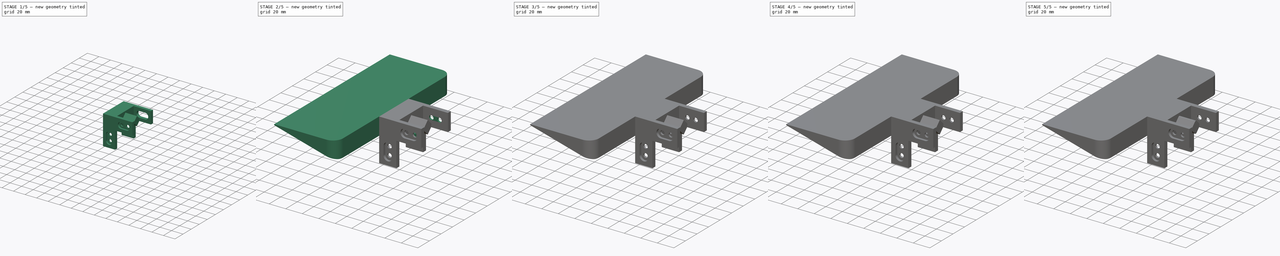
[diagram: build sequence overview — one tinted view per stage of 5, left to right]
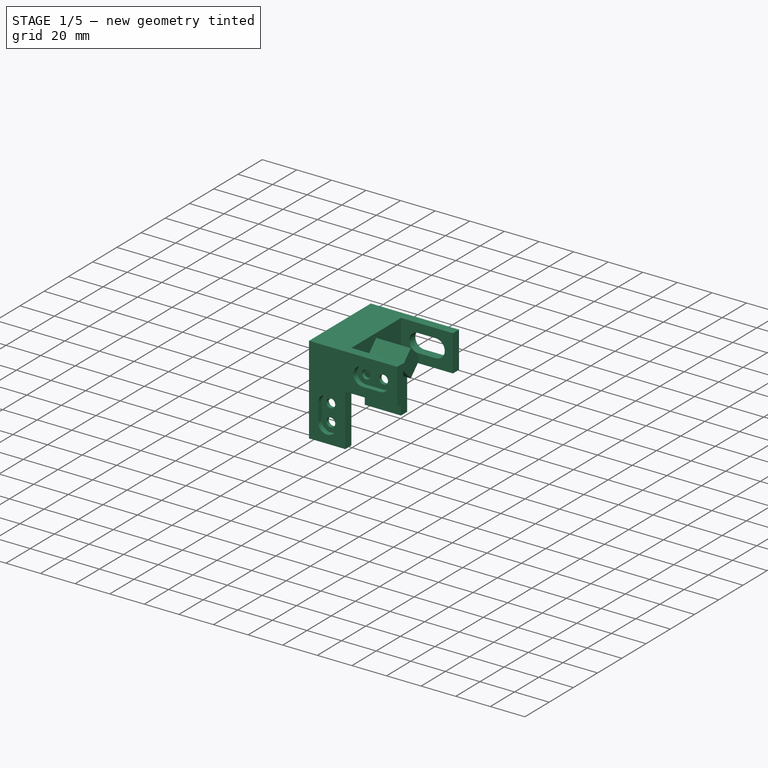
[diagram: stage 1 of 5 — iso view after this stage's code; geometry added in this stage tinted green]
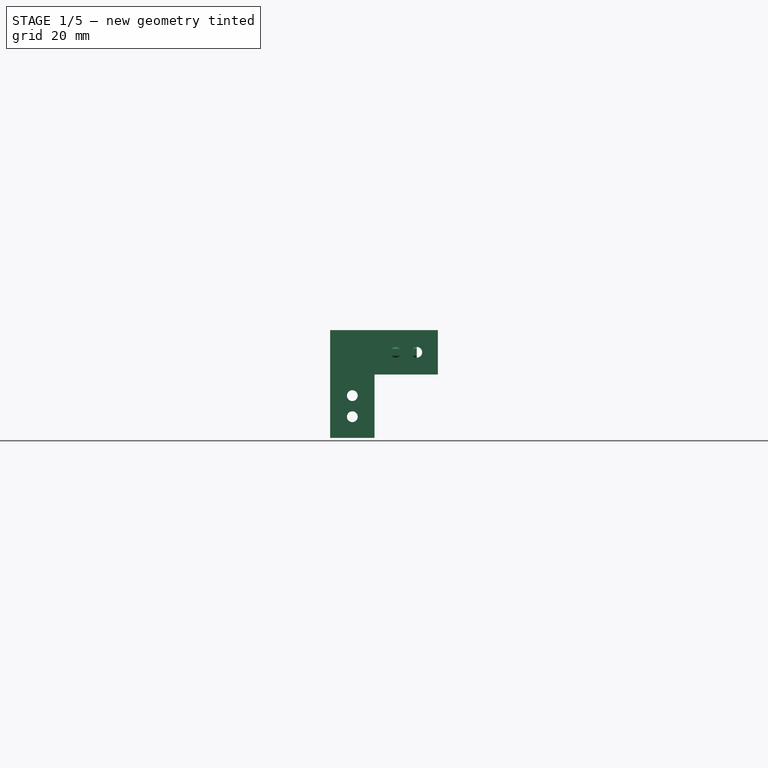
[diagram: stage 1 of 5 — front view after this stage's code; geometry added in this stage tinted green]
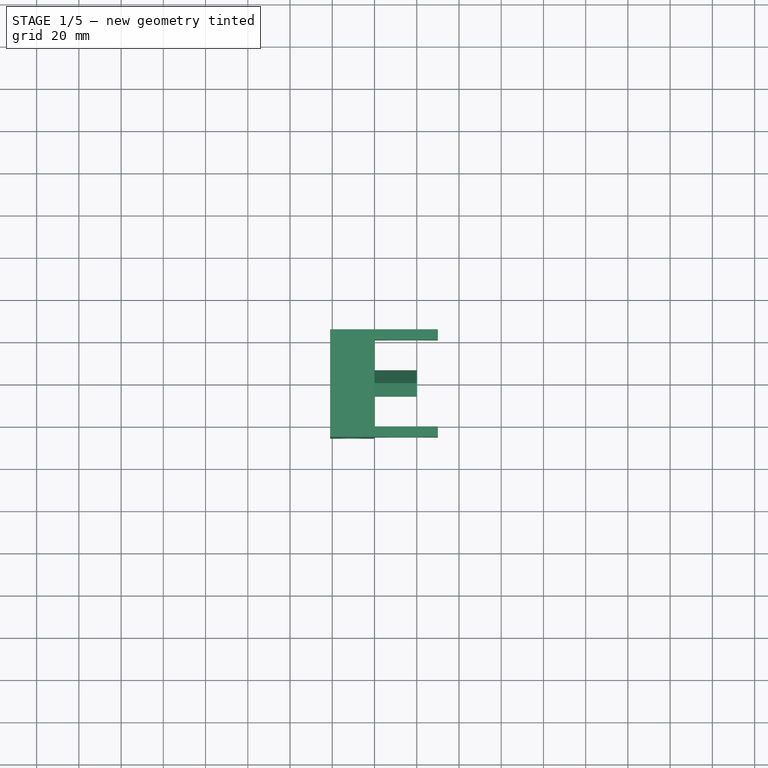
[diagram: stage 1 of 5 — top view after this stage's code; geometry added in this stage tinted green]
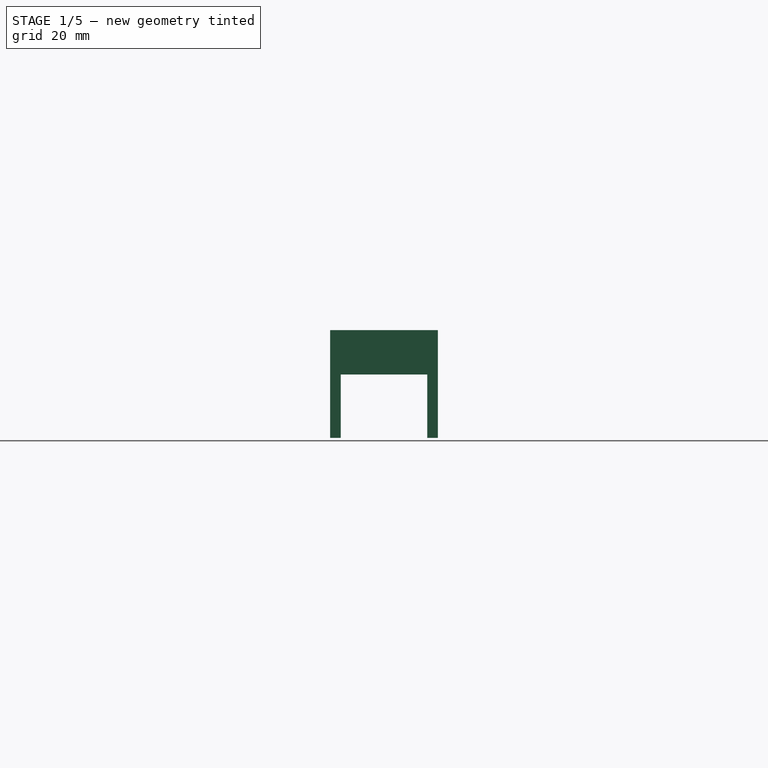
[diagram: stage 1 of 5 — right view after this stage's code; geometry added in this stage tinted green]
FCSTD DOCUMENT  (FreeCAD 1.0R39109 (Git))
Label: CornerCover
License: All rights reserved
LicenseURL: https://en.wikipedia.org/wiki/All_rights_reserved
objects: PartDesign::Pad×22, Sketcher::SketchObject×12, PartDesign::Plane×7, PartDesign::Fillet×7, PartDesign::Body×3, PartDesign::Pocket×2, PartDesign::Chamfer×1
note: 130 computed .brp shape members not serialized (recipe doc carries the construction recipe); baked Part::Feature solids carry a one-line shape summary decoded from their .brp

FEATURE [Sketcher::SketchObject] Sketch
  ArcFitTolerance = 1e-06
  AttachmentSupport = -> [YZ_Plane]
  FullyConstrained = false
  MakeInternals = false
  MapMode = 5
  Placement = pos=(0,0,0) rot=(0.57735,0.57735,0.57735;2.0944rad)
  sketch-geometry (13):
    g0: LineSegment StartX=-6.25 StartY=0.00215 StartZ=0 EndX=-6.25 EndY=1.64616 EndZ=0
    g1: LineSegment StartX=-6.25 StartY=1.64616 StartZ=0 EndX=0 EndY=7.9 EndZ=0
    g2: LineSegment StartX=6.25 StartY=1.64616 StartZ=0 EndX=0 EndY=7.9 EndZ=0
    g3: LineSegment StartX=6.25 StartY=0.00215 StartZ=0 EndX=6.25 EndY=1.64616 EndZ=0
    g4: LineSegment StartX=-6.25 StartY=-1.64616 StartZ=0 EndX=0 EndY=-7.9 EndZ=0
    g5: LineSegment StartX=-6.25 StartY=0.00215 StartZ=0 EndX=-6.25 EndY=-1.64616 EndZ=0
    g6: LineSegment StartX=6.25 StartY=0.00215 StartZ=0 EndX=6.25 EndY=-1.64616 EndZ=0
    g7: LineSegment StartX=6.25 StartY=-1.64616 StartZ=0 EndX=0 EndY=-7.9 EndZ=0
    g8: LineSegment StartX=-20.5 StartY=-10.5 StartZ=0 EndX=20.5 EndY=-10.5 EndZ=0
    g9: LineSegment StartX=20.5 StartY=-10.5 StartZ=0 EndX=20.5 EndY=10.5 EndZ=0
    g10: LineSegment StartX=20.5 StartY=10.5 StartZ=0 EndX=-20.5 EndY=10.5 EndZ=0
    g11: LineSegment StartX=-20.5 StartY=10.5 StartZ=0 EndX=-20.5 EndY=-10.5 EndZ=0
    g12: GeomPoint [constr] X=0 Y=0 Z=0
  constraints (20):
    c: Coincident(g1,g0)
    c: Coincident(g2,g3)
    c: Coincident(g4,g5)
    c: Coincident(g7,g6)
    c: DistanceY(g4,g1) = 15.8
    c: Distance(g0,g3) = 12.5
    c: Coincident(g3,g6)
    c: Coincident(g0,g5)
    c: Coincident(g8,g9)
    c: Coincident(g9,g10)
    c: Coincident(g10,g11)
    c: Coincident(g11,g8)
    c: Horizontal(g8)
    c: Horizontal(g10)
    c: Vertical(g9)
    c: Vertical(g11)
    c: Symmetric(g10,g8,g12)
    c: Distance(g9,g11) = 41
    c: Distance(g8,g10) = 21
    c: Coincident(g12,g-1)
FEATURE [PartDesign::Pad] Pad
  Direction = (1,0,0)
  Length = 20
  Length2 = 10
  Placement = pos=(0,0,0) rot=(1,1,1;2.0944rad)
  Profile = -> Sketch [Edge3,Edge2,Edge1,Edge8,Edge7,Edge6,Edge5,Edge4]
  ReferenceAxis = -> Sketch [N_Axis]
  Refine = true
  Suppressed = false
  Type = 0
FEATURE [PartDesign::Pad] Pad001
  BaseFeature = -> Pad
  Direction = (1,0,0)
  Length = 21
  Length2 = 10
  Placement = pos=(0,0,0) rot=(1,1,1;2.0944rad)
  Profile = -> Sketch [Edge12,Edge11,Edge10,Edge9]
  ReferenceAxis = -> Sketch [N_Axis]
  Refine = true
  Reversed = true
  Suppressed = false
  Type = 0
FEATURE [PartDesign::Plane] DatumPlane
  AttachmentSupport = -> [Pad001]
  Length = 83.6799
  MapMode = 5
  Placement = pos=(-4.5e-15,-20.5,0) rot=(0.57735,0.57735,-0.57735;2.0944rad)
  ResizeMode = 0
  Width = 144.18
FEATURE [Sketcher::SketchObject] Sketch001
  ArcFitTolerance = 1e-06
  AttachmentSupport = -> [DatumPlane]
  FullyConstrained = false
  MakeInternals = false
  MapMode = 5
  Placement = pos=(-4.5e-15,-20.5,0) rot=(0.57735,0.57735,-0.57735;2.0944rad)
  sketch-geometry (27):
    g0: LineSegment StartX=-10.5 StartY=-21 StartZ=0 EndX=-10.5 EndY=0 EndZ=0
    g1: LineSegment [constr] StartX=10.5 StartY=0 StartZ=0 EndX=10.5 EndY=-21 EndZ=0
    g2: LineSegment StartX=10.5 StartY=0 StartZ=0 EndX=40.5 EndY=0 EndZ=0
    g3: LineSegment StartX=10.5 StartY=-21 StartZ=0 EndX=40.5 EndY=-21 EndZ=0
    g4: LineSegment StartX=40.5 StartY=0 StartZ=0 EndX=40.5 EndY=-21 EndZ=0
    g5: LineSegment [constr] StartX=30.5 StartY=0 StartZ=0 EndX=30.5 EndY=-21 EndZ=0
    g6: LineSegment [constr] StartX=20.5 StartY=0 StartZ=0 EndX=20.5 EndY=-21 EndZ=0
    g7: LineSegment [constr] StartX=-10.5 StartY=-10.5 StartZ=0 EndX=40.5 EndY=-10.5 EndZ=0
    g8: ArcOfCircle CenterX=20.4998 CenterY=-10.5 CenterZ=0 NormalX=0 NormalY=0 NormalZ=1 AngleXU=0 Radius=5.25 StartAngle=1.57076 EndAngle=4.71243
    g9: ArcOfCircle CenterX=30.4998 CenterY=-10.5 CenterZ=0 NormalX=0 NormalY=0 NormalZ=1 AngleXU=0 Radius=5.25 StartAngle=4.71243 EndAngle=7.85394
    g10: LineSegment StartX=20.5 StartY=-5.25 StartZ=0 EndX=30.5 EndY=-5.25 EndZ=0
    g11: LineSegment StartX=20.5 StartY=-15.75 StartZ=0 EndX=30.5 EndY=-15.75 EndZ=0
    g12: Circle CenterX=20.4998 CenterY=-10.5 CenterZ=0 NormalX=0 NormalY=0 NormalZ=1 AngleXU=0 Radius=2.55
    g13: Circle CenterX=30.4998 CenterY=-10.5 CenterZ=0 NormalX=0 NormalY=0 NormalZ=1 AngleXU=0 Radius=2.55
    g14: LineSegment StartX=-10.5 StartY=-1e-15 StartZ=0 EndX=-10.5088 EndY=30.0088 EndZ=0
    g15: LineSegment StartX=10.5 StartY=0 StartZ=0 EndX=10.4912 EndY=30.0088 EndZ=0
    g16: LineSegment StartX=-10.5088 StartY=30.0088 StartZ=0 EndX=10.4912 EndY=30.0088 EndZ=0
    g17: LineSegment [constr] StartX=-10.5059 StartY=20.0088 StartZ=0 EndX=10.4912 EndY=20.0088 EndZ=0
    g18: LineSegment [constr] StartX=-10.5029 StartY=10 StartZ=0 EndX=10.4912 EndY=10.0088 EndZ=0
    g19: LineSegment [constr] StartX=-0.008817 StartY=-20.9912 StartZ=0 EndX=-0.008817 EndY=30.0088 EndZ=0
    g20: ArcOfCircle CenterX=-0.008817 CenterY=10.0086 CenterZ=0 NormalX=0 NormalY=0 NormalZ=1 AngleXU=0 Radius=5.25 StartAngle=3.14282 EndAngle=6.2828
    g21: ArcOfCircle CenterX=-0.008817 CenterY=20.0086 CenterZ=0 NormalX=0 NormalY=0 NormalZ=1 AngleXU=0 Radius=5.25 StartAngle=3.73333e-05 EndAngle=3.14156
    g22: LineSegment StartX=-5.25881 StartY=10.0022 StartZ=0 EndX=-5.25882 EndY=20.0088 EndZ=0
    g23: LineSegment StartX=5.24118 StartY=10.0066 StartZ=0 EndX=5.24118 EndY=20.0088 EndZ=0
    g24: Circle CenterX=-0.008817 CenterY=10.0086 CenterZ=0 NormalX=0 NormalY=0 NormalZ=1 AngleXU=0 Radius=2.55
    g25: Circle CenterX=-0.008817 CenterY=20.0086 CenterZ=0 NormalX=0 NormalY=0 NormalZ=1 AngleXU=0 Radius=2.55
    g26: LineSegment StartX=-10.5 StartY=-21 StartZ=0 EndX=10.5 EndY=-21 EndZ=0
  constraints (66):
    c: Distance(g0) = 21
    c: Vertical(g0)
    c: PointOnObject(g1,g-1)
    c: Distance(g2) = 30
    c: PointOnObject(g2,g-1)
    c: Distance(g3) = 30
    c: Horizontal(g3)
    c: Coincident(g4,g2)
    c: Coincident(g4,g3)
    c: Distance(g5) = 21
    c: Vertical(g5)
    c: PointOnObject(g5,g2)
    c: Distance(g4,g5) = 10
    c: Distance(g-1,g0) = 10.5
    c: Distance(g6) = 21
    c: Vertical(g6)
    c: PointOnObject(g6,g2)
    c: Distance(g1,g6) = 10
    c: Symmetric(g0,g0,g7)
    c: Symmetric(g4,g4,g7)
    c: PointOnObject(g8,g7)
    c: PointOnObject(g8,g6)
    c: PointOnObject(g8,g6)
    c: Radius(g9) = 5.25
    c: PointOnObject(g9,g7)
    c: PointOnObject(g9,g5)
    c: PointOnObject(g9,g5)
    c: Coincident(g10,g8)
    c: Coincident(g10,g9)
    c: Horizontal(g10)
    c: Coincident(g11,g8)
    c: Coincident(g11,g9)
    c: Horizontal(g11)
    c: Diameter(g12) = 5.1
    c: Coincident(g12,g8)
    c: Diameter(g13) = 5.1
    c: Coincident(g13,g9)
    c: Coincident(g16,g14)
    c: Coincident(g16,g15)
    c: PointOnObject(g17,g14)
    c: Distance(g16,g17) = 10
    c: PointOnObject(g18,g14)
    c: Distance(g14,g18) = 10
    c: Symmetric(g16,g16,g19)
    c: Radius(g20) = 5.25
    c: PointOnObject(g20,g19)
    c: PointOnObject(g20,g18)
    c: PointOnObject(g20,g18)
    c: Radius(g21) = 5.25
    c: PointOnObject(g21,g19)
    c: PointOnObject(g21,g17)
    c: PointOnObject(g21,g17)
    c: Coincident(g22,g20)
    c: Coincident(g22,g21)
    c: Coincident(g23,g20)
    c: Coincident(g23,g21)
    c: Diameter(g24) = 5.1
    c: Coincident(g24,g20)
    c: Diameter(g25) = 5.1
    c: Coincident(g25,g21)
    c: Coincident(g1,g2)
    c: Coincident(g1,g15)
    c: Coincident(g0,g14)
    c: Coincident(g26,g0)
    c: Coincident(g26,g3)
    c: Horizontal(g26)
FEATURE [PartDesign::Pad] Pad003
  BaseFeature = -> Pad001
  Direction = (0,-1,0)
  Length = 2
  Length2 = 10
  Placement = pos=(0,0,0) rot=(1,1,1;2.0944rad)
  Profile = -> Sketch001 [Edge9,Edge12,Vertex12,Vertex14,Edge14,Edge13,Edge10,Edge11]
  ReferenceAxis = -> Sketch001 [N_Axis]
  Refine = true
  Suppressed = false
  Type = 0
FEATURE [PartDesign::Pad] Pad004
  BaseFeature = -> Pad003
  Direction = (0,-1,0)
  Length = 5
  Length2 = 10
  Placement = pos=(0,0,0) rot=(1,1,1;2.0944rad)
  Profile = -> Sketch001 [Edge4,Edge3,Edge1,Edge2,Edge8,Edge7,Edge5,Edge6,Edge12,Edge11,Edge10,Edge9,Edge15,Edge16,Edge17,Edge18]
  ReferenceAxis = -> Sketch001 [N_Axis]
  Refine = true
  Suppressed = false
  Type = 0
FEATURE [PartDesign::Pad] Pad005
  BaseFeature = -> Pad004
  Direction = (0,-1,0)
  Length = 2
  Length2 = 10
  Placement = pos=(0,0,0) rot=(1,1,1;2.0944rad)
  Profile = -> Sketch001 [Edge16,Edge17,Edge18,Edge15,Edge19,Edge20,Edge9,Edge10,Edge11,Edge12,Edge14,Vertex13,Edge13]
  ReferenceAxis = -> Sketch001 [N_Axis]
  Refine = true
  Suppressed = false
  Type = 0
FEATURE [PartDesign::Plane] DatumPlane001
  AttachmentSupport = -> [Pad005]
  Length = 83.6799
  MapMode = 5
  Placement = pos=(4.5e-15,20.5,0) rot=(0.57735,0.57735,0.57735;4.18879rad)
  ResizeMode = 0
  Width = 144.18
FEATURE [Sketcher::SketchObject] Sketch002
  ArcFitTolerance = 1e-06
  AttachmentSupport = -> [Pad005]
  FullyConstrained = false
  MakeInternals = false
  MapMode = 5
  Placement = pos=(4.5e-15,20.5,0) rot=(0.57735,0.57735,0.57735;4.18879rad)
  sketch-geometry (28):
    g0: LineSegment StartX=10.5 StartY=-21 StartZ=0 EndX=-10.5 EndY=-21 EndZ=0
    g1: LineSegment [constr] StartX=-10.5 StartY=0 StartZ=0 EndX=10.5 EndY=0 EndZ=0
    g2: LineSegment StartX=-10.5 StartY=0 StartZ=0 EndX=-10.5 EndY=30 EndZ=0
    g3: LineSegment StartX=10.5 StartY=0 StartZ=0 EndX=10.5 EndY=30 EndZ=0
    g4: LineSegment StartX=-10.5 StartY=30 StartZ=0 EndX=10.5 EndY=30 EndZ=0
    g5: LineSegment [constr] StartX=-10.5 StartY=20 StartZ=0 EndX=10.5 EndY=20 EndZ=0
    g6: LineSegment [constr] StartX=-10.5 StartY=10 StartZ=0 EndX=10.5 EndY=10 EndZ=0
    g7: LineSegment [constr] StartX=0 StartY=-21 StartZ=0 EndX=0 EndY=30 EndZ=0
    g8: ArcOfCircle CenterX=0 CenterY=9.9998 CenterZ=0 NormalX=0 NormalY=0 NormalZ=1 AngleXU=0 Radius=5.25 StartAngle=3.14156 EndAngle=6.28322
    g9: ArcOfCircle CenterX=0 CenterY=19.9998 CenterZ=0 NormalX=0 NormalY=0 NormalZ=1 AngleXU=0 Radius=5.25 StartAngle=3.73333e-05 EndAngle=3.14156
    g10: LineSegment StartX=-5.25 StartY=10 StartZ=0 EndX=-5.25 EndY=20 EndZ=0
    g11: LineSegment StartX=5.25 StartY=10 StartZ=0 EndX=5.25 EndY=20 EndZ=0
    g12: Circle CenterX=0 CenterY=9.9998 CenterZ=0 NormalX=0 NormalY=0 NormalZ=1 AngleXU=0 Radius=2.55
    g13: Circle CenterX=0 CenterY=19.9998 CenterZ=0 NormalX=0 NormalY=0 NormalZ=1 AngleXU=0 Radius=2.55
    g14: LineSegment StartX=-10.5 StartY=-21 StartZ=0 EndX=-40.5088 EndY=-21.0088 EndZ=0
    g15: LineSegment StartX=-10.5 StartY=0 StartZ=0 EndX=-40.5088 EndY=-0.008817 EndZ=0
    g16: LineSegment StartX=-40.5088 StartY=-21.0088 StartZ=0 EndX=-40.5088 EndY=-0.008817 EndZ=0
    g17: LineSegment [constr] StartX=-30.5088 StartY=-21.0059 StartZ=0 EndX=-30.5088 EndY=-0.008817 EndZ=0
    g18: LineSegment [constr] StartX=-20.5 StartY=-21.0029 StartZ=0 EndX=-20.5088 EndY=-0.008817 EndZ=0
    g19: LineSegment [constr] StartX=10.4912 StartY=-10.4977 StartZ=0 EndX=-40.5088 EndY=-10.5088 EndZ=0
    g20: ArcOfCircle CenterX=-20.5086 CenterY=-10.5045 CenterZ=0 NormalX=0 NormalY=0 NormalZ=1 AngleXU=0 Radius=5.25 StartAngle=4.71361 EndAngle=7.8536
    g21: ArcOfCircle CenterX=-30.5086 CenterY=-10.5066 CenterZ=0 NormalX=0 NormalY=0 NormalZ=1 AngleXU=0 Radius=5.25 StartAngle=1.57083 EndAngle=4.71235
    g22: LineSegment StartX=-20.5022 StartY=-15.7545 StartZ=0 EndX=-30.5088 EndY=-15.7566 EndZ=0
    g23: LineSegment StartX=-20.5066 StartY=-5.25446 StartZ=0 EndX=-30.5088 EndY=-5.25664 EndZ=0
    g24: Circle CenterX=-20.5086 CenterY=-10.5045 CenterZ=0 NormalX=0 NormalY=0 NormalZ=1 AngleXU=0 Radius=2.55
    g25: Circle CenterX=-30.5086 CenterY=-10.5066 CenterZ=0 NormalX=0 NormalY=0 NormalZ=1 AngleXU=0 Radius=2.55
    g26: LineSegment StartX=10.5 StartY=-21 StartZ=0 EndX=10.5 EndY=0 EndZ=0
    g27: LineSegment [constr] StartX=-10.5 StartY=-10.5 StartZ=0 EndX=0 EndY=-10.5 EndZ=0
  constraints (52):
    c: Coincident(g4,g2)
    c: Coincident(g4,g3)
    c: PointOnObject(g5,g2)
    c: Distance(g4,g5) = 10
    c: PointOnObject(g6,g2)
    c: Distance(g1,g6) = 10
    c: Symmetric(g0,g0,g7)
    c: Symmetric(g4,g4,g7)
    c: PointOnObject(g8,g7)
    c: PointOnObject(g8,g6)
    c: PointOnObject(g8,g6)
    c: Radius(g9) = 5.25
    c: PointOnObject(g9,g7)
    c: PointOnObject(g9,g5)
    c: PointOnObject(g9,g5)
    c: Coincident(g10,g8)
    c: Coincident(g10,g9)
    c: Coincident(g11,g8)
    c: Coincident(g11,g9)
    c: Diameter(g12) = 5.1
    c: Coincident(g12,g8)
    c: Diameter(g13) = 5.1
    c: Coincident(g13,g9)
    c: Coincident(g16,g14)
    c: Coincident(g16,g15)
    c: PointOnObject(g17,g14)
    c: Distance(g16,g17) = 10
    c: PointOnObject(g18,g14)
    c: Distance(g14,g18) = 10
    c: Symmetric(g16,g16,g19)
    c: Radius(g20) = 5.25
    c: PointOnObject(g20,g19)
    c: PointOnObject(g20,g18)
    c: PointOnObject(g20,g18)
    c: Radius(g21) = 5.25
    c: PointOnObject(g21,g19)
    c: PointOnObject(g21,g17)
    c: PointOnObject(g21,g17)
    c: Coincident(g22,g20)
    c: Coincident(g22,g21)
    c: Coincident(g23,g20)
    c: Coincident(g23,g21)
    c: Diameter(g24) = 5.1
    c: Coincident(g24,g20)
    c: Diameter(g25) = 5.1
    c: Coincident(g25,g21)
    c: Coincident(g1,g2)
    c: Coincident(g1,g15)
    c: Coincident(g0,g14)
    c: Coincident(g26,g0)
    c: Coincident(g26,g3)
    c: PointOnObject(g27,g19)
FEATURE [PartDesign::Pad] Pad006
  BaseFeature = -> Pad005
  Direction = (-1e-16,1,-1e-15)
  Length = 5
  Length2 = 10
  Placement = pos=(0,0,0) rot=(1,1,1;2.0944rad)
  Profile = -> Sketch002 [Edge3,Edge2,Edge1,Edge8,Edge7,Edge6,Edge5,Edge4,Edge16,Edge17,Edge18,Edge15,Edge9,Edge12,Edge11,Edge10]
  ReferenceAxis = -> Sketch002 [N_Axis]
  Refine = true
  Suppressed = false
  Type = 0
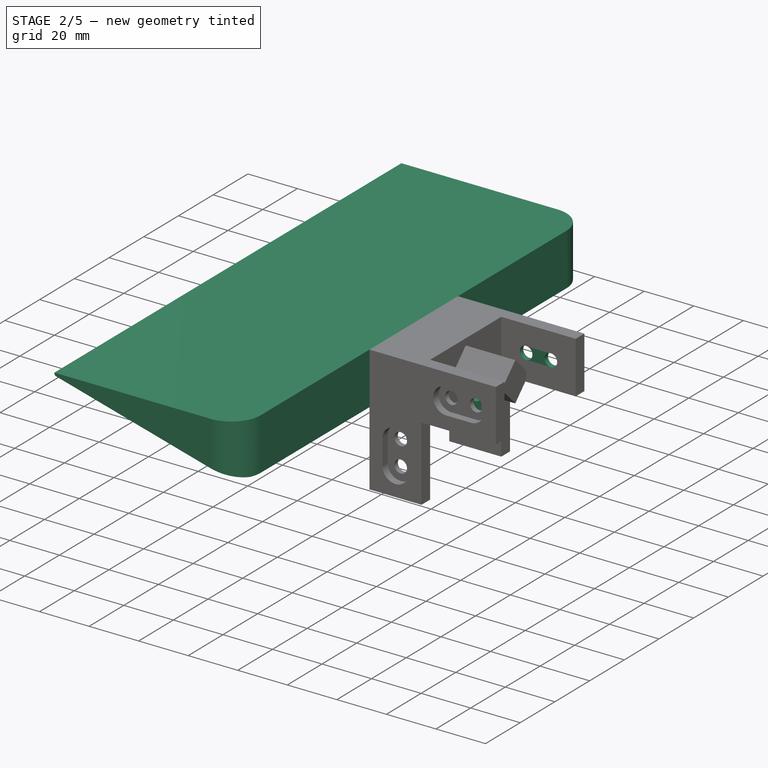
[diagram: stage 2 of 5 — iso view after this stage's code; geometry added in this stage tinted green]
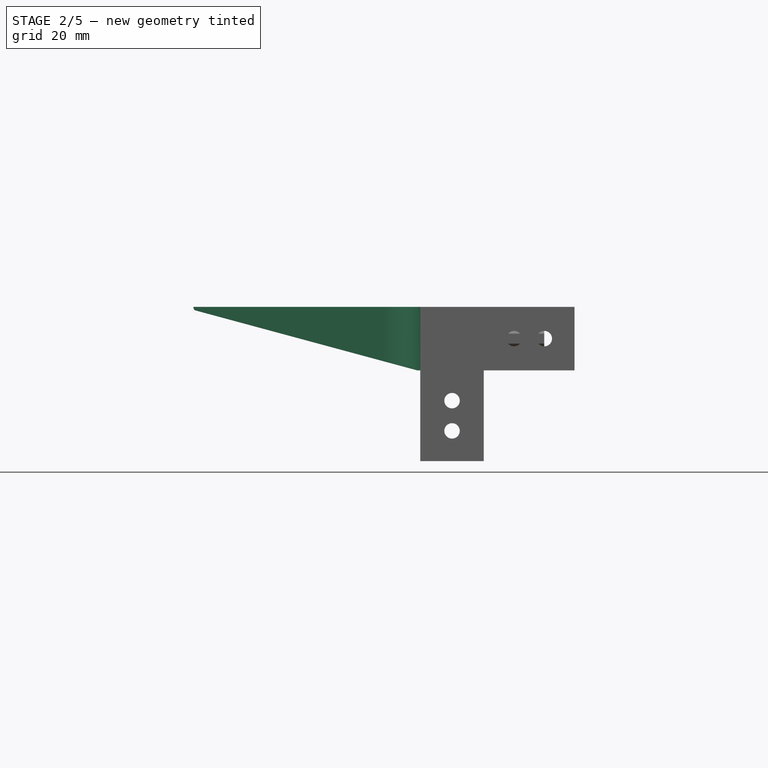
[diagram: stage 2 of 5 — front view after this stage's code; geometry added in this stage tinted green]
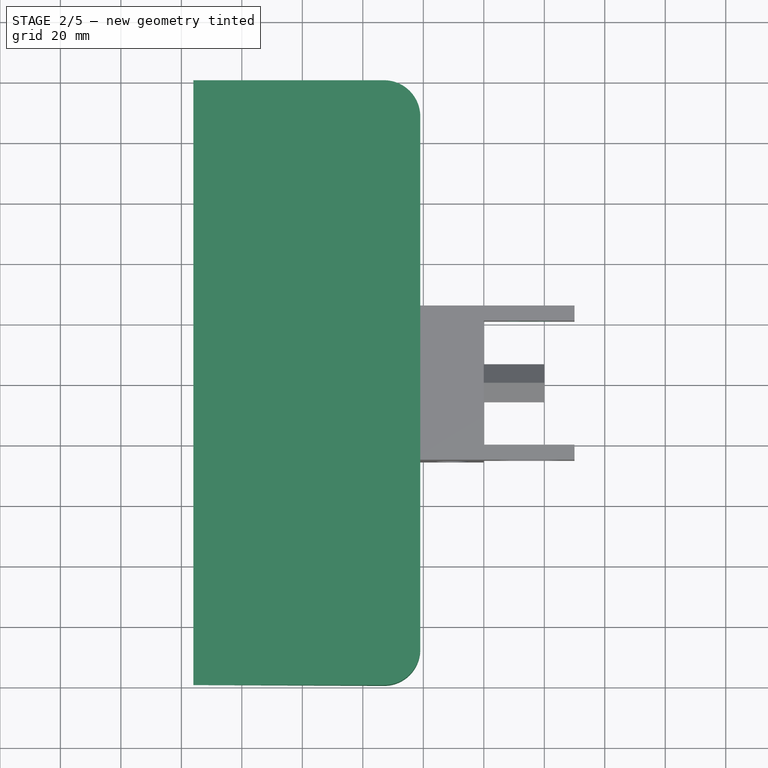
[diagram: stage 2 of 5 — top view after this stage's code; geometry added in this stage tinted green]
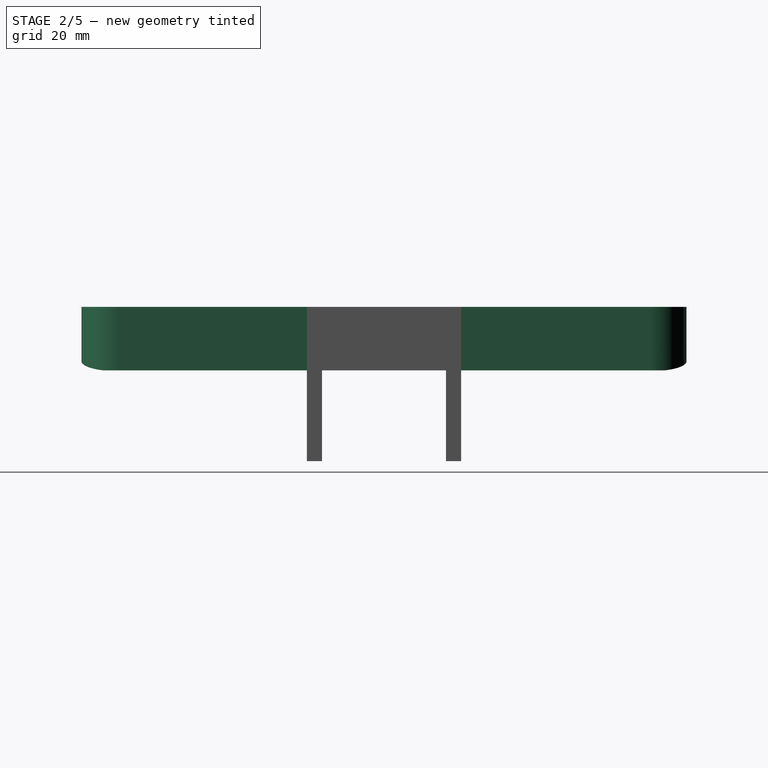
[diagram: stage 2 of 5 — right view after this stage's code; geometry added in this stage tinted green]
FEATURE [PartDesign::Pad] Pad007
  BaseFeature = -> Pad006
  Direction = (0,1,0)
  Length = 2
  Length2 = 10
  Placement = pos=(0,0,0) rot=(1,1,1;2.0944rad)
  Profile = -> Sketch002 [Edge18,Edge17,Edge16,Edge15,Edge19,Edge20,Edge9,Edge12,Edge11,Edge14,Edge13,Edge10]
  ReferenceAxis = -> Sketch002 [N_Axis]
  Refine = true
  Suppressed = false
  Type = 0
FEATURE [PartDesign::Fillet] Fillet
  Base = -> Pad007 [Edge21,Edge2,Edge22,Edge8,Edge5,Edge1]
  BaseFeature = -> Pad007
  Placement = pos=(0,0,0) rot=(1,1,1;2.0944rad)
  Radius = 2
  Refine = true
  SupportTransform = false
  Suppressed = false
  UseAllEdges = false
FEATURE [Sketcher::SketchObject] Sketch003
  ArcFitTolerance = 1e-06
  AttachmentSupport = -> [YZ_Plane001]
  FullyConstrained = false
  MakeInternals = false
  MapMode = 5
  Placement = pos=(0,0,0) rot=(0.57735,0.57735,0.57735;2.0944rad)
  sketch-geometry (13):
    g0: LineSegment StartX=-6.25 StartY=0.00215 StartZ=0 EndX=-6.25 EndY=1.64616 EndZ=0
    g1: LineSegment StartX=-6.25 StartY=1.64616 StartZ=0 EndX=0 EndY=7.9 EndZ=0
    g2: LineSegment StartX=6.25 StartY=1.64616 StartZ=0 EndX=0 EndY=7.9 EndZ=0
    g3: LineSegment StartX=6.25 StartY=0.00215 StartZ=0 EndX=6.25 EndY=1.64616 EndZ=0
    g4: LineSegment StartX=-6.25 StartY=-1.64616 StartZ=0 EndX=0 EndY=-7.9 EndZ=0
    g5: LineSegment StartX=-6.25 StartY=0.00215 StartZ=0 EndX=-6.25 EndY=-1.64616 EndZ=0
    g6: LineSegment StartX=6.25 StartY=0.00215 StartZ=0 EndX=6.25 EndY=-1.64616 EndZ=0
    g7: LineSegment StartX=6.25 StartY=-1.64616 StartZ=0 EndX=0 EndY=-7.9 EndZ=0
    g8: LineSegment StartX=-20.5 StartY=-10.5 StartZ=0 EndX=20.5 EndY=-10.5 EndZ=0
    g9: LineSegment StartX=20.5 StartY=-10.5 StartZ=0 EndX=20.5 EndY=10.5 EndZ=0
    g10: LineSegment StartX=20.5 StartY=10.5 StartZ=0 EndX=-20.5 EndY=10.5 EndZ=0
    g11: LineSegment StartX=-20.5 StartY=10.5 StartZ=0 EndX=-20.5 EndY=-10.5 EndZ=0
    g12: GeomPoint [constr] X=0 Y=0 Z=0
  constraints (20):
    c: Coincident(g1,g0)
    c: Coincident(g2,g3)
    c: Coincident(g4,g5)
    c: Coincident(g7,g6)
    c: DistanceY(g4,g1) = 15.8
    c: Distance(g0,g3) = 12.5
    c: Coincident(g3,g6)
    c: Coincident(g0,g5)
    c: Coincident(g8,g9)
    c: Coincident(g9,g10)
    c: Coincident(g10,g11)
    c: Coincident(g11,g8)
    c: Horizontal(g8)
    c: Horizontal(g10)
    c: Vertical(g9)
    c: Vertical(g11)
    c: Symmetric(g10,g8,g12)
    c: Distance(g9,g11) = 41
    c: Distance(g8,g10) = 21
    c: Coincident(g12,g-1)
FEATURE [PartDesign::Pad] Pad008
  Direction = (1,0,0)
  Length = 20
  Length2 = 10
  Placement = pos=(0,0,0) rot=(1,1,1;2.0944rad)
  Profile = -> Sketch003 [Edge3,Edge2,Edge1,Edge8,Edge7,Edge6,Edge5,Edge4]
  ReferenceAxis = -> Sketch003 [N_Axis]
  Refine = true
  Suppressed = false
  Type = 0
FEATURE [PartDesign::Body] Body001  label="CornerCoverL"
  AllowCompound = false
  Group = -> [Sketch003,Pad008,Pad009,DatumPlane002,Sketch004,Pad010,Pad011,Pad012,DatumPlane003,Sketch005,Pad013,Pad014,Fillet002,Fillet003,Sketch010,Pocket001]
  Origin = -> Origin001
  Tip = -> Pocket001
FEATURE [PartDesign::Plane] DatumPlane006
  AttachmentSupport = -> [Fillet]
  Length = 222.893
  MapMode = 5
  Placement = pos=(-21,0,-2.21e-14) rot=(0.57735,0.57735,-0.57735;4.18879rad)
  ResizeMode = 0
  Width = 88.4014
FEATURE [Sketcher::SketchObject] Sketch011
  ArcFitTolerance = 1e-06
  AttachmentSupport = -> [DatumPlane006]
  FullyConstrained = true
  MakeInternals = false
  MapMode = 5
  Placement = pos=(-21,0,-2.21e-14) rot=(0.57735,0.57735,-0.57735;4.18879rad)
  sketch-geometry (5):
    g0: LineSegment StartX=-100 StartY=-10.5 StartZ=0 EndX=100 EndY=-10.5 EndZ=0
    g1: LineSegment StartX=100 StartY=-10.5 StartZ=0 EndX=100 EndY=10.5 EndZ=0
    g2: LineSegment StartX=100 StartY=10.5 StartZ=0 EndX=-100 EndY=10.5 EndZ=0
    g3: LineSegment StartX=-100 StartY=10.5 StartZ=0 EndX=-100 EndY=-10.5 EndZ=0
    g4: GeomPoint [constr] X=0 Y=0 Z=0
  constraints (12):
    c: Coincident(g0,g1)
    c: Coincident(g1,g2)
    c: Coincident(g2,g3)
    c: Coincident(g3,g0)
    c: Horizontal(g0)
    c: Horizontal(g2)
    c: Vertical(g1)
    c: Vertical(g3)
    c: Symmetric(g2,g0,g4)
    c: Distance(g1,g3) = 200
    c: Distance(g0,g2) = 21
    c: Coincident(g4,g-1)
FEATURE [PartDesign::Pad] Pad022
  BaseFeature = -> Fillet
  Direction = (-1,0,0)
  Length = 75
  Length2 = 10
  Placement = pos=(0,0,0) rot=(1,1,1;2.0944rad)
  Profile = -> Sketch011 [Edge1,Edge4,Edge3,Edge2]
  ReferenceAxis = -> Sketch011 [N_Axis]
  Refine = true
  Suppressed = false
  Type = 0
FEATURE [PartDesign::Chamfer] Chamfer
  Angle = 45
  Base = -> Pad022 [Edge160]
  BaseFeature = -> Pad022
  ChamferType = 1
  FlipDirection = false
  Placement = pos=(0,0,0) rot=(1,1,1;2.0944rad)
  Refine = true
  Size = 20
  Size2 = 74
  SupportTransform = false
  Suppressed = false
  UseAllEdges = false
FEATURE [PartDesign::Fillet] Fillet006
  Base = -> Chamfer [Edge16]
  BaseFeature = -> Chamfer
  Placement = pos=(0,0,0) rot=(1,1,1;2.0944rad)
  Radius = 1
  Refine = true
  SupportTransform = false
  Suppressed = false
  UseAllEdges = false
FEATURE [PartDesign::Fillet] Fillet007
  Base = -> Fillet006 [Edge32,Edge5]
  BaseFeature = -> Fillet006
  Placement = pos=(0,0,0) rot=(1,1,1;2.0944rad)
  Radius = 12
  Refine = true
  SupportTransform = false
  Suppressed = false
  UseAllEdges = false
FEATURE [PartDesign::Body] Body  label="CornerCoverFoot"
  AllowCompound = false
  Group = -> [Sketch,Pad,Pad001,DatumPlane,Sketch001,Pad003,Pad004,Pad005,DatumPlane001,Sketch002,Pad006,Pad007,Fillet,DatumPlane006,Sketch011,Pad022,Chamfer,Fillet006,Fillet007]
  Origin = -> Origin
  Tip = -> Fillet007
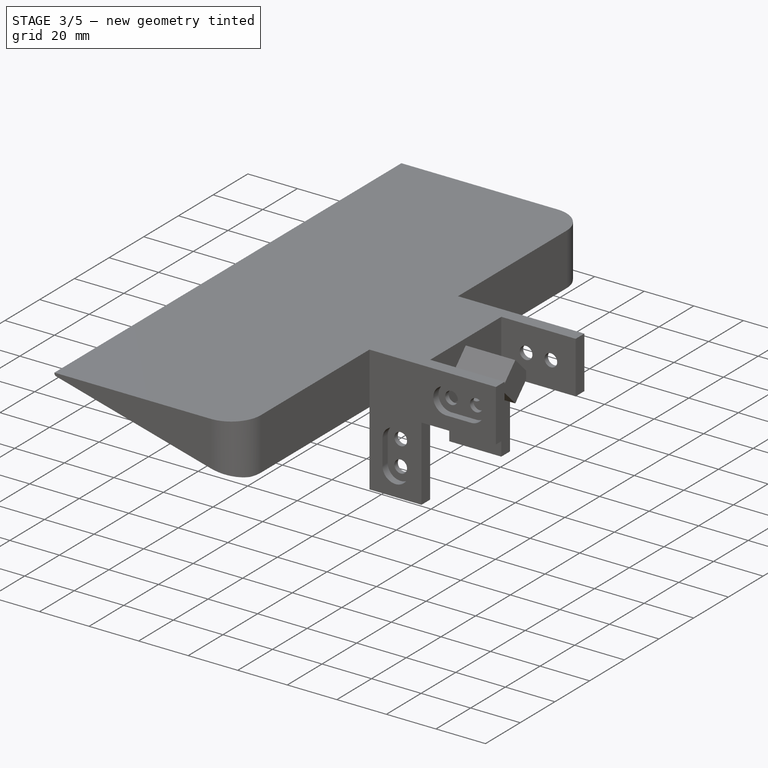
[diagram: stage 3 of 5 — iso view after this stage's code; geometry added in this stage tinted green]
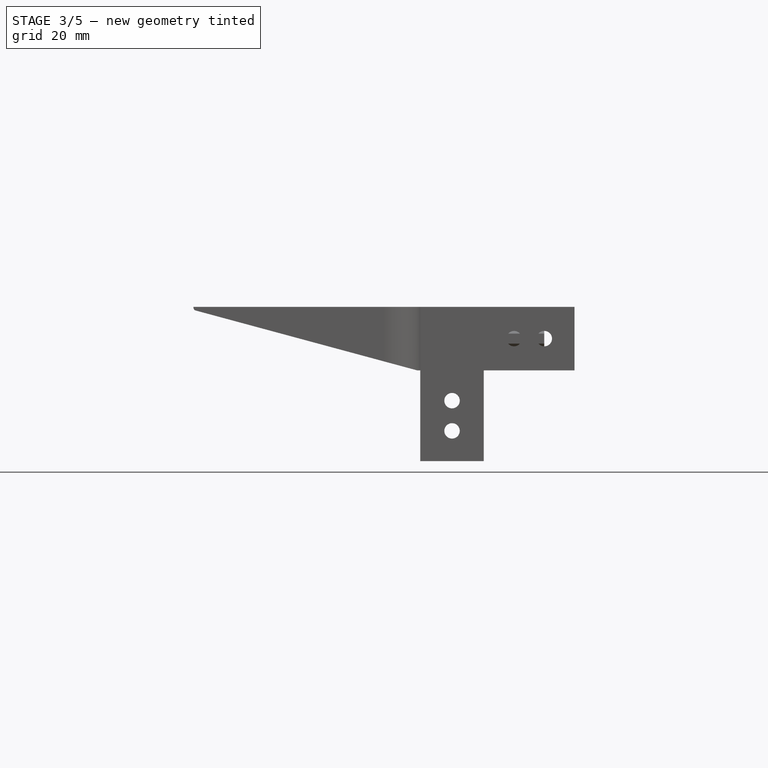
[diagram: stage 3 of 5 — front view after this stage's code; geometry added in this stage tinted green]
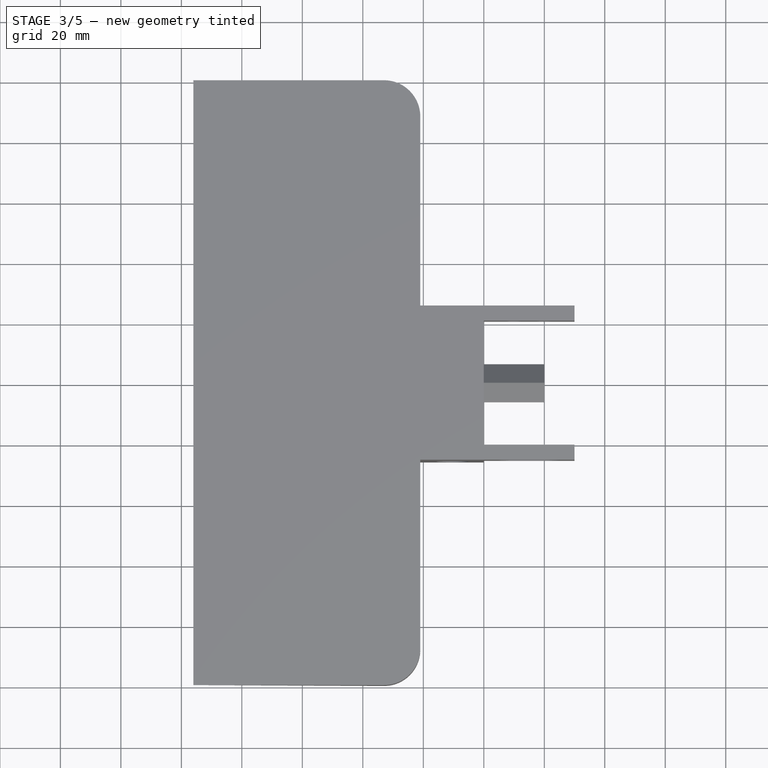
[diagram: stage 3 of 5 — top view after this stage's code; geometry added in this stage tinted green]
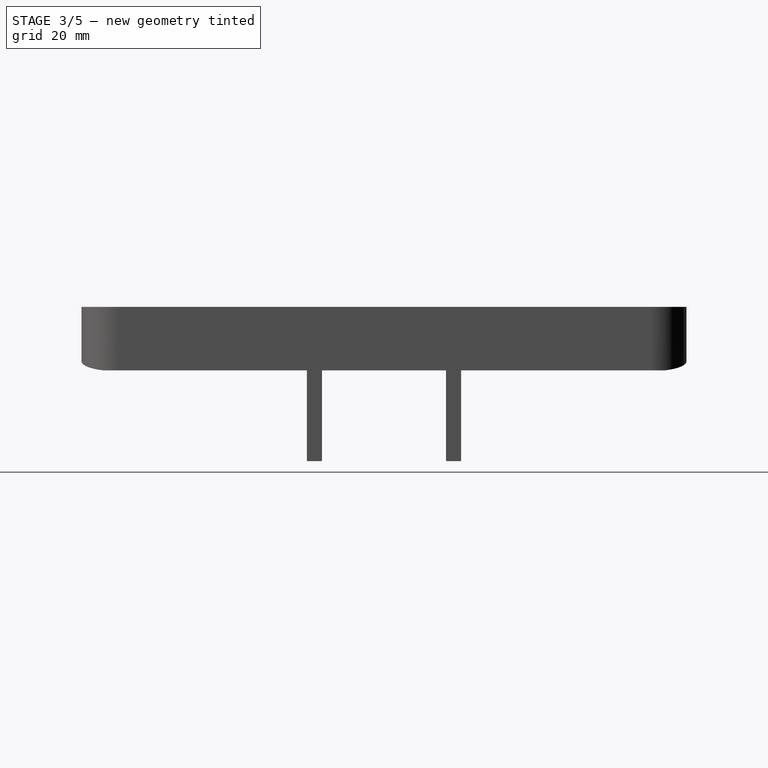
[diagram: stage 3 of 5 — right view after this stage's code; geometry added in this stage tinted green]
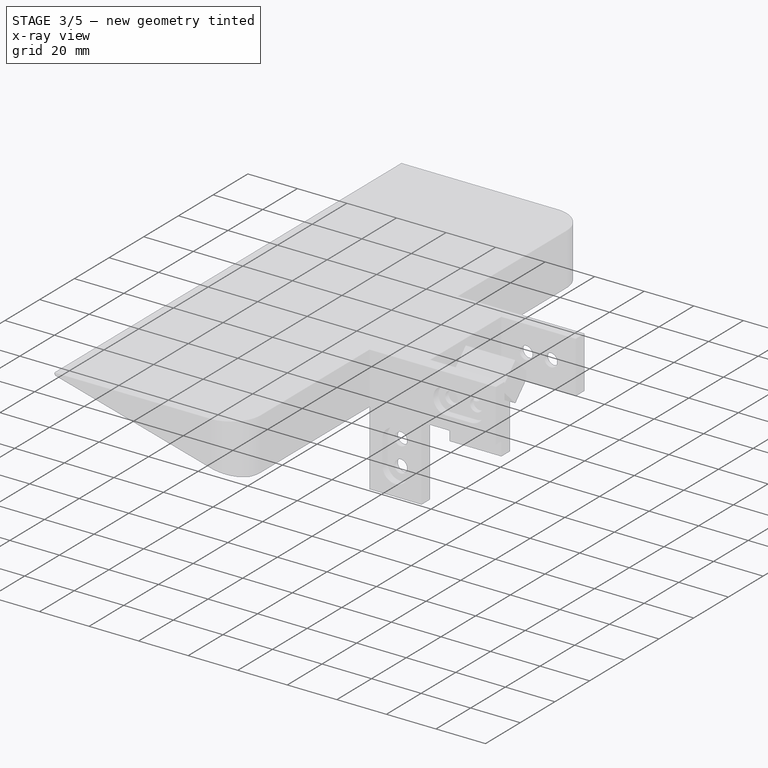
[diagram: stage 3 of 5 — x-ray composite at the iso view; earlier geometry ghosted, this stage's added geometry solid]
FEATURE [PartDesign::Pad] Pad009
  BaseFeature = -> Pad008
  Direction = (1,0,0)
  Length = 21
  Length2 = 10
  Placement = pos=(0,0,0) rot=(1,1,1;2.0944rad)
  Profile = -> Sketch003 [Edge12,Edge11,Edge10,Edge9]
  ReferenceAxis = -> Sketch003 [N_Axis]
  Refine = true
  Reversed = true
  Suppressed = false
  Type = 0
FEATURE [PartDesign::Plane] DatumPlane002
  AttachmentSupport = -> [Pad009]
  Length = 77.5138
  MapMode = 5
  Placement = pos=(-4.5e-15,-20.5,0) rot=(0.57735,0.57735,-0.57735;2.0944rad)
  ResizeMode = 0
  Width = 67.005
FEATURE [Sketcher::SketchObject] Sketch004
  ArcFitTolerance = 1e-06
  AttachmentSupport = -> [DatumPlane002]
  FullyConstrained = false
  MakeInternals = false
  MapMode = 5
  Placement = pos=(-4.5e-15,-20.5,0) rot=(0.57735,0.57735,-0.57735;2.0944rad)
  sketch-geometry (27):
    g0: LineSegment StartX=-10.5 StartY=-21 StartZ=0 EndX=-10.5 EndY=0 EndZ=0
    g1: LineSegment [constr] StartX=10.5 StartY=0 StartZ=0 EndX=10.5 EndY=-21 EndZ=0
    g2: LineSegment StartX=10.5 StartY=0 StartZ=0 EndX=40.5 EndY=0 EndZ=0
    g3: LineSegment StartX=10.5 StartY=-21 StartZ=0 EndX=40.5 EndY=-21 EndZ=0
    g4: LineSegment StartX=40.5 StartY=0 StartZ=0 EndX=40.5 EndY=-21 EndZ=0
    g5: LineSegment [constr] StartX=30.5 StartY=0 StartZ=0 EndX=30.5 EndY=-21 EndZ=0
    g6: LineSegment [constr] StartX=20.5 StartY=0 StartZ=0 EndX=20.5 EndY=-21 EndZ=0
    g7: LineSegment [constr] StartX=-10.5 StartY=-10.5 StartZ=0 EndX=40.5 EndY=-10.5 EndZ=0
    g8: ArcOfCircle CenterX=20.4998 CenterY=-10.5 CenterZ=0 NormalX=0 NormalY=0 NormalZ=1 AngleXU=0 Radius=5.25 StartAngle=1.57076 EndAngle=4.71243
    g9: ArcOfCircle CenterX=30.4998 CenterY=-10.5 CenterZ=0 NormalX=0 NormalY=0 NormalZ=1 AngleXU=0 Radius=5.25 StartAngle=4.71243 EndAngle=7.85394
    g10: LineSegment StartX=20.5 StartY=-5.25 StartZ=0 EndX=30.5 EndY=-5.25 EndZ=0
    g11: LineSegment StartX=20.5 StartY=-15.75 StartZ=0 EndX=30.5 EndY=-15.75 EndZ=0
    g12: Circle CenterX=20.4998 CenterY=-10.5 CenterZ=0 NormalX=0 NormalY=0 NormalZ=1 AngleXU=0 Radius=2.55
    g13: Circle CenterX=30.4998 CenterY=-10.5 CenterZ=0 NormalX=0 NormalY=0 NormalZ=1 AngleXU=0 Radius=2.55
    g14: LineSegment StartX=-10.5 StartY=-1e-15 StartZ=0 EndX=-10.5088 EndY=30.0088 EndZ=0
    g15: LineSegment StartX=10.5 StartY=0 StartZ=0 EndX=10.4912 EndY=30.0088 EndZ=0
    g16: LineSegment StartX=-10.5088 StartY=30.0088 StartZ=0 EndX=10.4912 EndY=30.0088 EndZ=0
    g17: LineSegment [constr] StartX=-10.5059 StartY=20.0088 StartZ=0 EndX=10.4912 EndY=20.0088 EndZ=0
    g18: LineSegment [constr] StartX=-10.5029 StartY=10 StartZ=0 EndX=10.4912 EndY=10.0088 EndZ=0
    g19: LineSegment [constr] StartX=-0.008817 StartY=-20.9912 StartZ=0 EndX=-0.008817 EndY=30.0088 EndZ=0
    g20: ArcOfCircle CenterX=-0.008817 CenterY=10.0086 CenterZ=0 NormalX=0 NormalY=0 NormalZ=1 AngleXU=0 Radius=5.25 StartAngle=3.14282 EndAngle=6.2828
    g21: ArcOfCircle CenterX=-0.008817 CenterY=20.0086 CenterZ=0 NormalX=0 NormalY=0 NormalZ=1 AngleXU=0 Radius=5.25 StartAngle=3.73333e-05 EndAngle=3.14156
    g22: LineSegment StartX=-5.25881 StartY=10.0022 StartZ=0 EndX=-5.25882 EndY=20.0088 EndZ=0
    g23: LineSegment StartX=5.24118 StartY=10.0066 StartZ=0 EndX=5.24118 EndY=20.0088 EndZ=0
    g24: Circle CenterX=-0.008817 CenterY=10.0086 CenterZ=0 NormalX=0 NormalY=0 NormalZ=1 AngleXU=0 Radius=2.55
    g25: Circle CenterX=-0.008817 CenterY=20.0086 CenterZ=0 NormalX=0 NormalY=0 NormalZ=1 AngleXU=0 Radius=2.55
    g26: LineSegment StartX=-10.5 StartY=-21 StartZ=0 EndX=10.5 EndY=-21 EndZ=0
  constraints (66):
    c: Distance(g0) = 21
    c: Vertical(g0)
    c: PointOnObject(g1,g-1)
    c: Distance(g2) = 30
    c: PointOnObject(g2,g-1)
    c: Distance(g3) = 30
    c: Horizontal(g3)
    c: Coincident(g4,g2)
    c: Coincident(g4,g3)
    c: Distance(g5) = 21
    c: Vertical(g5)
    c: PointOnObject(g5,g2)
    c: Distance(g4,g5) = 10
    c: Distance(g-1,g0) = 10.5
    c: Distance(g6) = 21
    c: Vertical(g6)
    c: PointOnObject(g6,g2)
    c: Distance(g1,g6) = 10
    c: Symmetric(g0,g0,g7)
    c: Symmetric(g4,g4,g7)
    c: PointOnObject(g8,g7)
    c: PointOnObject(g8,g6)
    c: PointOnObject(g8,g6)
    c: Radius(g9) = 5.25
    c: PointOnObject(g9,g7)
    c: PointOnObject(g9,g5)
    c: PointOnObject(g9,g5)
    c: Coincident(g10,g8)
    c: Coincident(g10,g9)
    c: Horizontal(g10)
    c: Coincident(g11,g8)
    c: Coincident(g11,g9)
    c: Horizontal(g11)
    c: Diameter(g12) = 5.1
    c: Coincident(g12,g8)
    c: Diameter(g13) = 5.1
    c: Coincident(g13,g9)
    c: Coincident(g16,g14)
    c: Coincident(g16,g15)
    c: PointOnObject(g17,g14)
    c: Distance(g16,g17) = 10
    c: PointOnObject(g18,g14)
    c: Distance(g14,g18) = 10
    c: Symmetric(g16,g16,g19)
    c: Radius(g20) = 5.25
    c: PointOnObject(g20,g19)
    c: PointOnObject(g20,g18)
    c: PointOnObject(g20,g18)
    c: Radius(g21) = 5.25
    c: PointOnObject(g21,g19)
    c: PointOnObject(g21,g17)
    c: PointOnObject(g21,g17)
    c: Coincident(g22,g20)
    c: Coincident(g22,g21)
    c: Coincident(g23,g20)
    c: Coincident(g23,g21)
    c: Diameter(g24) = 5.1
    c: Coincident(g24,g20)
    c: Diameter(g25) = 5.1
    c: Coincident(g25,g21)
    c: Coincident(g1,g2)
    c: Coincident(g1,g15)
    c: Coincident(g0,g14)
    c: Coincident(g26,g0)
    c: Coincident(g26,g3)
    c: Horizontal(g26)
FEATURE [PartDesign::Pad] Pad010
  BaseFeature = -> Pad009
  Direction = (0,-1,0)
  Length = 2
  Length2 = 10
  Placement = pos=(0,0,0) rot=(1,1,1;2.0944rad)
  Profile = -> Sketch004 [Edge9,Edge12,Vertex12,Vertex14,Edge14,Edge13,Edge10,Edge11]
  ReferenceAxis = -> Sketch004 [N_Axis]
  Refine = true
  Suppressed = false
  Type = 0
FEATURE [PartDesign::Pad] Pad011
  BaseFeature = -> Pad010
  Direction = (0,-1,0)
  Length = 5
  Length2 = 10
  Placement = pos=(0,0,0) rot=(1,1,1;2.0944rad)
  Profile = -> Sketch004 [Edge4,Edge3,Edge1,Edge2,Edge8,Edge7,Edge5,Edge6,Edge12,Edge11,Edge10,Edge9,Edge15,Edge16,Edge17,Edge18]
  ReferenceAxis = -> Sketch004 [N_Axis]
  Refine = true
  Suppressed = false
  Type = 0
FEATURE [PartDesign::Pad] Pad012
  BaseFeature = -> Pad011
  Direction = (0,-1,0)
  Length = 2
  Length2 = 10
  Placement = pos=(0,0,0) rot=(1,1,1;2.0944rad)
  Profile = -> Sketch004 [Edge16,Edge17,Edge18,Edge15,Edge19,Edge20,Edge9,Edge10,Edge11,Edge12,Edge14,Vertex13,Edge13]
  ReferenceAxis = -> Sketch004 [N_Axis]
  Refine = true
  Suppressed = false
  Type = 0
FEATURE [PartDesign::Plane] DatumPlane003
  AttachmentSupport = -> [Pad012]
  Length = 77.5138
  MapMode = 5
  Placement = pos=(4.5e-15,20.5,0) rot=(0.57735,0.57735,0.57735;4.18879rad)
  ResizeMode = 0
  Width = 67.005
FEATURE [Sketcher::SketchObject] Sketch005
  ArcFitTolerance = 1e-06
  AttachmentSupport = -> [Pad012]
  FullyConstrained = false
  MakeInternals = false
  MapMode = 5
  Placement = pos=(4.5e-15,20.5,0) rot=(0.57735,0.57735,0.57735;4.18879rad)
  sketch-geometry (28):
    g0: LineSegment StartX=10.5 StartY=-21 StartZ=0 EndX=-10.5 EndY=-21 EndZ=0
    g1: LineSegment [constr] StartX=-10.5 StartY=0 StartZ=0 EndX=10.5 EndY=0 EndZ=0
    g2: LineSegment StartX=-10.5 StartY=0 StartZ=0 EndX=-10.5 EndY=30 EndZ=0
    g3: LineSegment StartX=10.5 StartY=0 StartZ=0 EndX=10.5 EndY=30 EndZ=0
    g4: LineSegment StartX=-10.5 StartY=30 StartZ=0 EndX=10.5 EndY=30 EndZ=0
    g5: LineSegment [constr] StartX=-10.5 StartY=20 StartZ=0 EndX=10.5 EndY=20 EndZ=0
    g6: LineSegment [constr] StartX=-10.5 StartY=10 StartZ=0 EndX=10.5 EndY=10 EndZ=0
    g7: LineSegment [constr] StartX=0 StartY=-21 StartZ=0 EndX=0 EndY=30 EndZ=0
    g8: ArcOfCircle CenterX=0 CenterY=9.9998 CenterZ=0 NormalX=0 NormalY=0 NormalZ=1 AngleXU=0 Radius=5.25 StartAngle=3.14156 EndAngle=6.28322
    g9: ArcOfCircle CenterX=0 CenterY=19.9998 CenterZ=0 NormalX=0 NormalY=0 NormalZ=1 AngleXU=0 Radius=5.25 StartAngle=3.73333e-05 EndAngle=3.14156
    g10: LineSegment StartX=-5.25 StartY=10 StartZ=0 EndX=-5.25 EndY=20 EndZ=0
    g11: LineSegment StartX=5.25 StartY=10 StartZ=0 EndX=5.25 EndY=20 EndZ=0
    g12: Circle CenterX=0 CenterY=9.9998 CenterZ=0 NormalX=0 NormalY=0 NormalZ=1 AngleXU=0 Radius=2.55
    g13: Circle CenterX=0 CenterY=19.9998 CenterZ=0 NormalX=0 NormalY=0 NormalZ=1 AngleXU=0 Radius=2.55
    g14: LineSegment StartX=-10.5 StartY=-21 StartZ=0 EndX=-40.5088 EndY=-21.0088 EndZ=0
    g15: LineSegment StartX=-10.5 StartY=0 StartZ=0 EndX=-40.5088 EndY=-0.008817 EndZ=0
    g16: LineSegment StartX=-40.5088 StartY=-21.0088 StartZ=0 EndX=-40.5088 EndY=-0.008817 EndZ=0
    g17: LineSegment [constr] StartX=-30.5088 StartY=-21.0059 StartZ=0 EndX=-30.5088 EndY=-0.008817 EndZ=0
    g18: LineSegment [constr] StartX=-20.5 StartY=-21.0029 StartZ=0 EndX=-20.5088 EndY=-0.008817 EndZ=0
    g19: LineSegment [constr] StartX=10.4912 StartY=-10.4977 StartZ=0 EndX=-40.5088 EndY=-10.5088 EndZ=0
    g20: ArcOfCircle CenterX=-20.5086 CenterY=-10.5045 CenterZ=0 NormalX=0 NormalY=0 NormalZ=1 AngleXU=0 Radius=5.25 StartAngle=4.71361 EndAngle=7.8536
    g21: ArcOfCircle CenterX=-30.5086 CenterY=-10.5066 CenterZ=0 NormalX=0 NormalY=0 NormalZ=1 AngleXU=0 Radius=5.25 StartAngle=1.57083 EndAngle=4.71235
    g22: LineSegment StartX=-20.5022 StartY=-15.7545 StartZ=0 EndX=-30.5088 EndY=-15.7566 EndZ=0
    g23: LineSegment StartX=-20.5066 StartY=-5.25446 StartZ=0 EndX=-30.5088 EndY=-5.25664 EndZ=0
    g24: Circle CenterX=-20.5086 CenterY=-10.5045 CenterZ=0 NormalX=0 NormalY=0 NormalZ=1 AngleXU=0 Radius=2.55
    g25: Circle CenterX=-30.5086 CenterY=-10.5066 CenterZ=0 NormalX=0 NormalY=0 NormalZ=1 AngleXU=0 Radius=2.55
    g26: LineSegment StartX=10.5 StartY=-21 StartZ=0 EndX=10.5 EndY=0 EndZ=0
    g27: LineSegment [constr] StartX=-10.5 StartY=-10.5 StartZ=0 EndX=0 EndY=-10.5 EndZ=0
  constraints (52):
    c: Coincident(g4,g2)
    c: Coincident(g4,g3)
    c: PointOnObject(g5,g2)
    c: Distance(g4,g5) = 10
    c: PointOnObject(g6,g2)
    c: Distance(g1,g6) = 10
    c: Symmetric(g0,g0,g7)
    c: Symmetric(g4,g4,g7)
    c: PointOnObject(g8,g7)
    c: PointOnObject(g8,g6)
    c: PointOnObject(g8,g6)
    c: Radius(g9) = 5.25
    c: PointOnObject(g9,g7)
    c: PointOnObject(g9,g5)
    c: PointOnObject(g9,g5)
    c: Coincident(g10,g8)
    c: Coincident(g10,g9)
    c: Coincident(g11,g8)
    c: Coincident(g11,g9)
    c: Diameter(g12) = 5.1
    c: Coincident(g12,g8)
    c: Diameter(g13) = 5.1
    c: Coincident(g13,g9)
    c: Coincident(g16,g14)
    c: Coincident(g16,g15)
    c: PointOnObject(g17,g14)
    c: Distance(g16,g17) = 10
    c: PointOnObject(g18,g14)
    c: Distance(g14,g18) = 10
    c: Symmetric(g16,g16,g19)
    c: Radius(g20) = 5.25
    c: PointOnObject(g20,g19)
    c: PointOnObject(g20,g18)
    c: PointOnObject(g20,g18)
    c: Radius(g21) = 5.25
    c: PointOnObject(g21,g19)
    c: PointOnObject(g21,g17)
    c: PointOnObject(g21,g17)
    c: Coincident(g22,g20)
    c: Coincident(g22,g21)
    c: Coincident(g23,g20)
    c: Coincident(g23,g21)
    c: Diameter(g24) = 5.1
    c: Coincident(g24,g20)
    c: Diameter(g25) = 5.1
    c: Coincident(g25,g21)
    c: Coincident(g1,g2)
    c: Coincident(g1,g15)
    c: Coincident(g0,g14)
    c: Coincident(g26,g0)
    c: Coincident(g26,g3)
    c: PointOnObject(g27,g19)
FEATURE [PartDesign::Pad] Pad013
  BaseFeature = -> Pad012
  Direction = (-1e-16,1,-1e-15)
  Length = 5
  Length2 = 10
  Placement = pos=(0,0,0) rot=(1,1,1;2.0944rad)
  Profile = -> Sketch005 [Edge3,Edge2,Edge1,Edge8,Edge7,Edge6,Edge5,Edge4,Edge16,Edge17,Edge18,Edge15,Edge9,Edge12,Edge11,Edge10]
  ReferenceAxis = -> Sketch005 [N_Axis]
  Refine = true
  Suppressed = false
  Type = 0
FEATURE [PartDesign::Pad] Pad014
  BaseFeature = -> Pad013
  Direction = (-1e-16,1,-1e-15)
  Length = 2
  Length2 = 10
  Placement = pos=(0,0,0) rot=(1,1,1;2.0944rad)
  Profile = -> Sketch005 [Edge18,Edge17,Edge16,Edge15,Edge19,Edge20,Edge9,Edge12,Edge11,Edge14,Edge13,Edge10]
  ReferenceAxis = -> Sketch005 [N_Axis]
  Refine = true
  Suppressed = false
  Type = 0
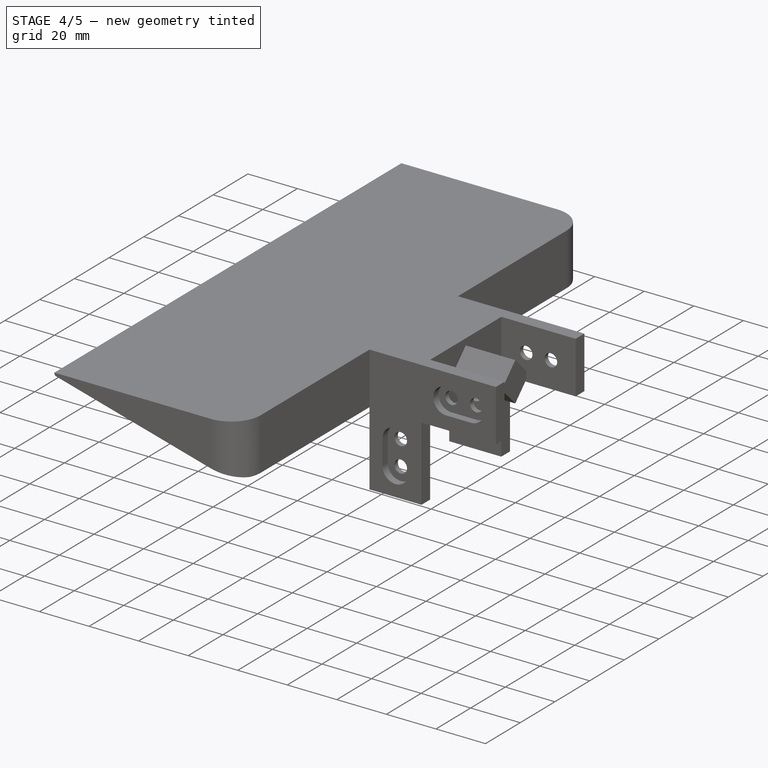
[diagram: stage 4 of 5 — iso view after this stage's code; geometry added in this stage tinted green]
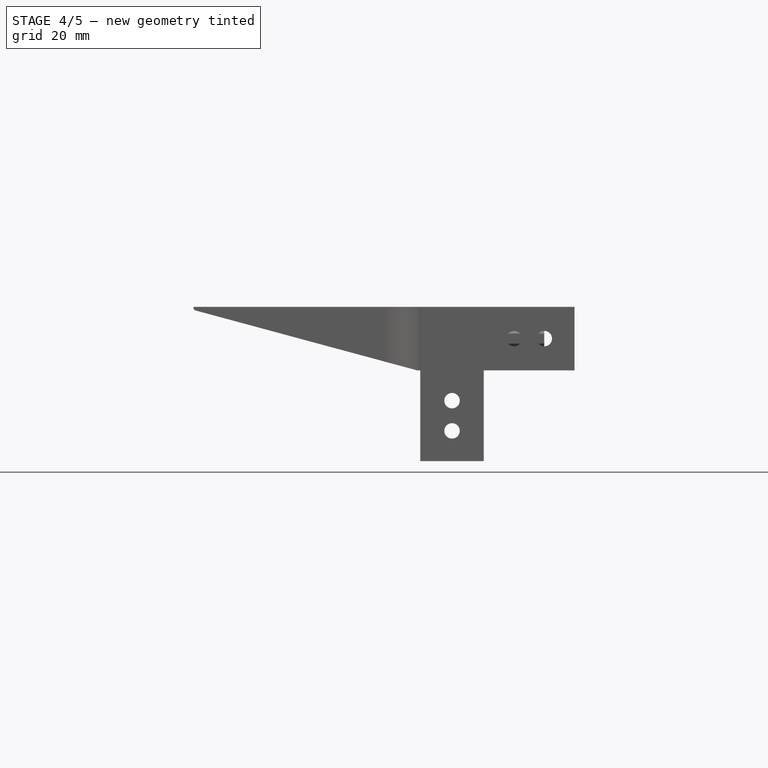
[diagram: stage 4 of 5 — front view after this stage's code; geometry added in this stage tinted green]
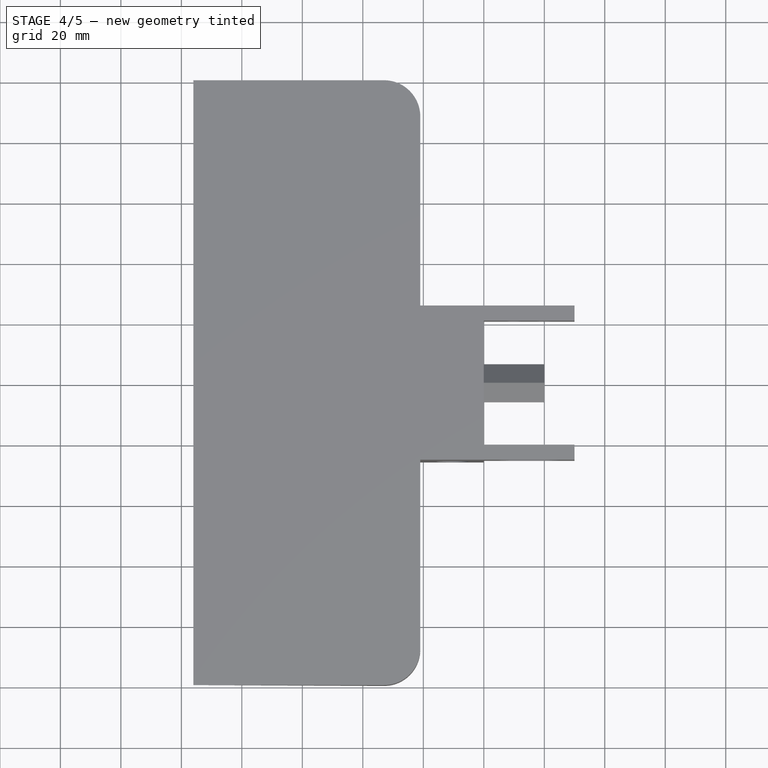
[diagram: stage 4 of 5 — top view after this stage's code; geometry added in this stage tinted green]
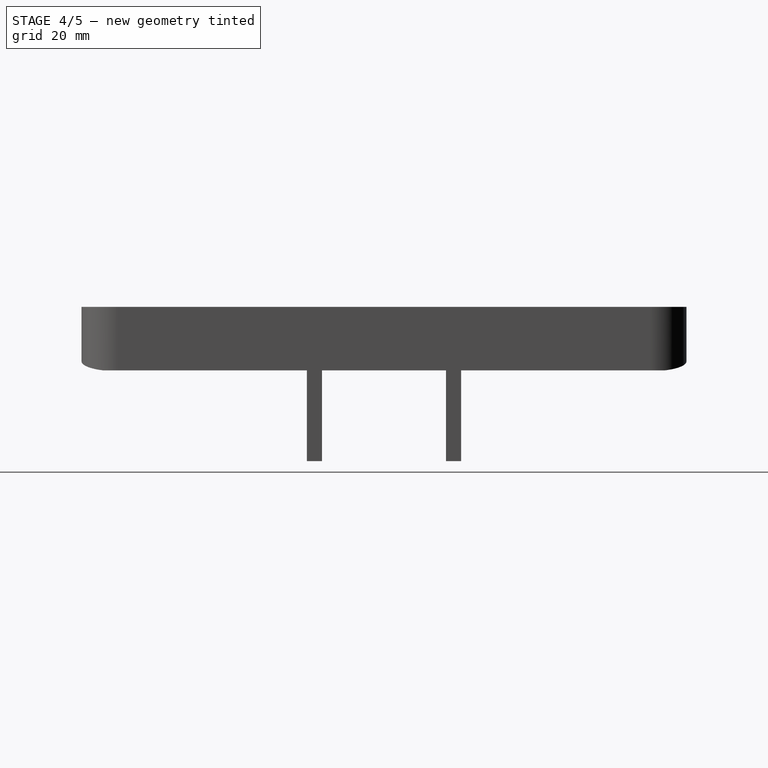
[diagram: stage 4 of 5 — right view after this stage's code; geometry added in this stage tinted green]
FEATURE [PartDesign::Fillet] Fillet002
  Base = -> Pad014 [Edge21,Edge2,Edge22,Edge8,Edge5,Edge1]
  BaseFeature = -> Pad014
  Placement = pos=(0,0,0) rot=(1,1,1;2.0944rad)
  Radius = 2
  Refine = true
  SupportTransform = false
  Suppressed = false
  UseAllEdges = false
FEATURE [PartDesign::Fillet] Fillet003
  Base = -> Fillet002 [Edge51]
  BaseFeature = -> Fillet002
  Placement = pos=(0,0,0) rot=(1,1,1;2.0944rad)
  Radius = 6
  Refine = true
  SupportTransform = false
  Suppressed = false
  UseAllEdges = false
FEATURE [Sketcher::SketchObject] Sketch006
  ArcFitTolerance = 1e-06
  AttachmentSupport = -> [YZ_Plane002]
  FullyConstrained = false
  MakeInternals = false
  MapMode = 5
  Placement = pos=(0,0,0) rot=(0.57735,0.57735,0.57735;2.0944rad)
  sketch-geometry (13):
    g0: LineSegment StartX=-6.25 StartY=0.00215 StartZ=0 EndX=-6.25 EndY=1.64616 EndZ=0
    g1: LineSegment StartX=-6.25 StartY=1.64616 StartZ=0 EndX=0 EndY=7.9 EndZ=0
    g2: LineSegment StartX=6.25 StartY=1.64616 StartZ=0 EndX=0 EndY=7.9 EndZ=0
    g3: LineSegment StartX=6.25 StartY=0.00215 StartZ=0 EndX=6.25 EndY=1.64616 EndZ=0
    g4: LineSegment StartX=-6.25 StartY=-1.64616 StartZ=0 EndX=0 EndY=-7.9 EndZ=0
    g5: LineSegment StartX=-6.25 StartY=0.00215 StartZ=0 EndX=-6.25 EndY=-1.64616 EndZ=0
    g6: LineSegment StartX=6.25 StartY=0.00215 StartZ=0 EndX=6.25 EndY=-1.64616 EndZ=0
    g7: LineSegment StartX=6.25 StartY=-1.64616 StartZ=0 EndX=0 EndY=-7.9 EndZ=0
    g8: LineSegment StartX=-20.5 StartY=-10.5 StartZ=0 EndX=20.5 EndY=-10.5 EndZ=0
    g9: LineSegment StartX=20.5 StartY=-10.5 StartZ=0 EndX=20.5 EndY=10.5 EndZ=0
    g10: LineSegment StartX=20.5 StartY=10.5 StartZ=0 EndX=-20.5 EndY=10.5 EndZ=0
    g11: LineSegment StartX=-20.5 StartY=10.5 StartZ=0 EndX=-20.5 EndY=-10.5 EndZ=0
    g12: GeomPoint [constr] X=0 Y=0 Z=0
  constraints (20):
    c: Coincident(g1,g0)
    c: Coincident(g2,g3)
    c: Coincident(g4,g5)
    c: Coincident(g7,g6)
    c: DistanceY(g4,g1) = 15.8
    c: Distance(g0,g3) = 12.5
    c: Coincident(g3,g6)
    c: Coincident(g0,g5)
    c: Coincident(g8,g9)
    c: Coincident(g9,g10)
    c: Coincident(g10,g11)
    c: Coincident(g11,g8)
    c: Horizontal(g8)
    c: Horizontal(g10)
    c: Vertical(g9)
    c: Vertical(g11)
    c: Symmetric(g10,g8,g12)
    c: Distance(g9,g11) = 41
    c: Distance(g8,g10) = 21
    c: Coincident(g12,g-1)
FEATURE [PartDesign::Pad] Pad015
  Direction = (1,0,0)
  Length = 20
  Length2 = 10
  Placement = pos=(0,0,0) rot=(1,1,1;2.0944rad)
  Profile = -> Sketch006 [Edge3,Edge2,Edge1,Edge8,Edge7,Edge6,Edge5,Edge4]
  ReferenceAxis = -> Sketch006 [N_Axis]
  Refine = true
  Suppressed = false
  Type = 0
FEATURE [PartDesign::Pad] Pad016
  BaseFeature = -> Pad015
  Direction = (1,0,0)
  Length = 21
  Length2 = 10
  Placement = pos=(0,0,0) rot=(1,1,1;2.0944rad)
  Profile = -> Sketch006 [Edge12,Edge11,Edge10,Edge9]
  ReferenceAxis = -> Sketch006 [N_Axis]
  Refine = true
  Reversed = true
  Suppressed = false
  Type = 0
FEATURE [PartDesign::Plane] DatumPlane004
  AttachmentSupport = -> [Pad016]
  Length = 77.5148
  MapMode = 5
  Placement = pos=(-4.5e-15,-20.5,0) rot=(0.57735,0.57735,-0.57735;2.0944rad)
  ResizeMode = 0
  Width = 67.0148
FEATURE [Sketcher::SketchObject] Sketch007
  ArcFitTolerance = 1e-06
  AttachmentSupport = -> [DatumPlane004]
  FullyConstrained = false
  MakeInternals = false
  MapMode = 5
  Placement = pos=(-4.5e-15,-20.5,0) rot=(0.57735,0.57735,-0.57735;2.0944rad)
  sketch-geometry (27):
    g0: LineSegment StartX=-10.5 StartY=-21 StartZ=0 EndX=-10.5 EndY=0 EndZ=0
    g1: LineSegment [constr] StartX=10.5 StartY=0 StartZ=0 EndX=10.5 EndY=-21 EndZ=0
    g2: LineSegment StartX=10.5 StartY=0 StartZ=0 EndX=40.5 EndY=0 EndZ=0
    g3: LineSegment StartX=10.5 StartY=-21 StartZ=0 EndX=40.5 EndY=-21 EndZ=0
    g4: LineSegment StartX=40.5 StartY=0 StartZ=0 EndX=40.5 EndY=-21 EndZ=0
    g5: LineSegment [constr] StartX=30.5 StartY=0 StartZ=0 EndX=30.5 EndY=-21 EndZ=0
    g6: LineSegment [constr] StartX=20.5 StartY=0 StartZ=0 EndX=20.5 EndY=-21 EndZ=0
    g7: LineSegment [constr] StartX=-10.5 StartY=-10.5 StartZ=0 EndX=40.5 EndY=-10.5 EndZ=0
    g8: ArcOfCircle CenterX=20.4998 CenterY=-10.5 CenterZ=0 NormalX=0 NormalY=0 NormalZ=1 AngleXU=0 Radius=5.25 StartAngle=1.57076 EndAngle=4.71243
    g9: ArcOfCircle CenterX=30.4998 CenterY=-10.5 CenterZ=0 NormalX=0 NormalY=0 NormalZ=1 AngleXU=0 Radius=5.25 StartAngle=4.71243 EndAngle=7.85394
    g10: LineSegment StartX=20.5 StartY=-5.25 StartZ=0 EndX=30.5 EndY=-5.25 EndZ=0
    g11: LineSegment StartX=20.5 StartY=-15.75 StartZ=0 EndX=30.5 EndY=-15.75 EndZ=0
    g12: Circle CenterX=20.4998 CenterY=-10.5 CenterZ=0 NormalX=0 NormalY=0 NormalZ=1 AngleXU=0 Radius=2.55
    g13: Circle CenterX=30.4998 CenterY=-10.5 CenterZ=0 NormalX=0 NormalY=0 NormalZ=1 AngleXU=0 Radius=2.55
    g14: LineSegment StartX=-10.5 StartY=-1e-15 StartZ=0 EndX=-10.5088 EndY=30.0088 EndZ=0
    g15: LineSegment StartX=10.5 StartY=0 StartZ=0 EndX=10.4912 EndY=30.0088 EndZ=0
    g16: LineSegment StartX=-10.5088 StartY=30.0088 StartZ=0 EndX=10.4912 EndY=30.0088 EndZ=0
    g17: LineSegment [constr] StartX=-10.5059 StartY=20.0088 StartZ=0 EndX=10.4912 EndY=20.0088 EndZ=0
    g18: LineSegment [constr] StartX=-10.5029 StartY=10 StartZ=0 EndX=10.4912 EndY=10.0088 EndZ=0
    g19: LineSegment [constr] StartX=-0.008817 StartY=-20.9912 StartZ=0 EndX=-0.008817 EndY=30.0088 EndZ=0
    g20: ArcOfCircle CenterX=-0.008817 CenterY=10.0086 CenterZ=0 NormalX=0 NormalY=0 NormalZ=1 AngleXU=0 Radius=5.25 StartAngle=3.14282 EndAngle=6.2828
    g21: ArcOfCircle CenterX=-0.008817 CenterY=20.0086 CenterZ=0 NormalX=0 NormalY=0 NormalZ=1 AngleXU=0 Radius=5.25 StartAngle=3.73333e-05 EndAngle=3.14156
    g22: LineSegment StartX=-5.25881 StartY=10.0022 StartZ=0 EndX=-5.25882 EndY=20.0088 EndZ=0
    g23: LineSegment StartX=5.24118 StartY=10.0066 StartZ=0 EndX=5.24118 EndY=20.0088 EndZ=0
    g24: Circle CenterX=-0.008817 CenterY=10.0086 CenterZ=0 NormalX=0 NormalY=0 NormalZ=1 AngleXU=0 Radius=2.55
    g25: Circle CenterX=-0.008817 CenterY=20.0086 CenterZ=0 NormalX=0 NormalY=0 NormalZ=1 AngleXU=0 Radius=2.55
    g26: LineSegment StartX=-10.5 StartY=-21 StartZ=0 EndX=10.5 EndY=-21 EndZ=0
  constraints (66):
    c: Distance(g0) = 21
    c: Vertical(g0)
    c: PointOnObject(g1,g-1)
    c: Distance(g2) = 30
    c: PointOnObject(g2,g-1)
    c: Distance(g3) = 30
    c: Horizontal(g3)
    c: Coincident(g4,g2)
    c: Coincident(g4,g3)
    c: Distance(g5) = 21
    c: Vertical(g5)
    c: PointOnObject(g5,g2)
    c: Distance(g4,g5) = 10
    c: Distance(g-1,g0) = 10.5
    c: Distance(g6) = 21
    c: Vertical(g6)
    c: PointOnObject(g6,g2)
    c: Distance(g1,g6) = 10
    c: Symmetric(g0,g0,g7)
    c: Symmetric(g4,g4,g7)
    c: PointOnObject(g8,g7)
    c: PointOnObject(g8,g6)
    c: PointOnObject(g8,g6)
    c: Radius(g9) = 5.25
    c: PointOnObject(g9,g7)
    c: PointOnObject(g9,g5)
    c: PointOnObject(g9,g5)
    c: Coincident(g10,g8)
    c: Coincident(g10,g9)
    c: Horizontal(g10)
    c: Coincident(g11,g8)
    c: Coincident(g11,g9)
    c: Horizontal(g11)
    c: Diameter(g12) = 5.1
    c: Coincident(g12,g8)
    c: Diameter(g13) = 5.1
    c: Coincident(g13,g9)
    c: Coincident(g16,g14)
    c: Coincident(g16,g15)
    c: PointOnObject(g17,g14)
    c: Distance(g16,g17) = 10
    c: PointOnObject(g18,g14)
    c: Distance(g14,g18) = 10
    c: Symmetric(g16,g16,g19)
    c: Radius(g20) = 5.25
    c: PointOnObject(g20,g19)
    c: PointOnObject(g20,g18)
    c: PointOnObject(g20,g18)
    c: Radius(g21) = 5.25
    c: PointOnObject(g21,g19)
    c: PointOnObject(g21,g17)
    c: PointOnObject(g21,g17)
    c: Coincident(g22,g20)
    c: Coincident(g22,g21)
    c: Coincident(g23,g20)
    c: Coincident(g23,g21)
    c: Diameter(g24) = 5.1
    c: Coincident(g24,g20)
    c: Diameter(g25) = 5.1
    c: Coincident(g25,g21)
    c: Coincident(g1,g2)
    c: Coincident(g1,g15)
    c: Coincident(g0,g14)
    c: Coincident(g26,g0)
    c: Coincident(g26,g3)
    c: Horizontal(g26)
FEATURE [PartDesign::Pad] Pad017
  BaseFeature = -> Pad016
  Direction = (0,-1,0)
  Length = 2
  Length2 = 10
  Placement = pos=(0,0,0) rot=(1,1,1;2.0944rad)
  Profile = -> Sketch007 [Edge9,Edge12,Vertex12,Vertex14,Edge14,Edge13,Edge10,Edge11]
  ReferenceAxis = -> Sketch007 [N_Axis]
  Refine = true
  Suppressed = false
  Type = 0
FEATURE [PartDesign::Pad] Pad018
  BaseFeature = -> Pad017
  Direction = (0,-1,0)
  Length = 5
  Length2 = 10
  Placement = pos=(0,0,0) rot=(1,1,1;2.0944rad)
  Profile = -> Sketch007 [Edge4,Edge3,Edge1,Edge2,Edge8,Edge7,Edge5,Edge6,Edge12,Edge11,Edge10,Edge9,Edge15,Edge16,Edge17,Edge18]
  ReferenceAxis = -> Sketch007 [N_Axis]
  Refine = true
  Suppressed = false
  Type = 0
FEATURE [PartDesign::Body] Body002  label="CornerCoverR"
  AllowCompound = false
  Group = -> [Sketch006,Pad015,Pad016,DatumPlane004,Sketch007,Pad017,Pad018,Pad019,DatumPlane005,Sketch008,Pad020,Pad021,Fillet004,Fillet005,Sketch009,Pocket]
  Origin = -> Origin002
  Tip = -> Pocket
FEATURE [Sketcher::SketchObject] Sketch010
  ArcFitTolerance = 1e-06
  AttachmentSupport = -> [DatumPlane002]
  FullyConstrained = false
  MakeInternals = false
  MapMode = 5
  Placement = pos=(-4.5e-15,-20.5,0) rot=(0.57735,0.57735,-0.57735;2.0944rad)
  sketch-geometry (4):
    g0: LineSegment StartX=10.5 StartY=0 StartZ=0 EndX=10.5 EndY=30 EndZ=0
    g1: LineSegment StartX=10.5 StartY=30 StartZ=0 EndX=-10.5 EndY=30 EndZ=0
    g2: LineSegment StartX=-10.5 StartY=30 StartZ=0 EndX=-10.5 EndY=0 EndZ=0
    g3: LineSegment StartX=-10.5 StartY=0 StartZ=0 EndX=10.5 EndY=0 EndZ=0
  constraints (11):
    c: PointOnObject(g0,g-1)
    c: Coincident(g0,g1)
    c: Coincident(g1,g2)
    c: Coincident(g2,g3)
    c: Coincident(g3,g0)
    c: Vertical(g0)
    c: Vertical(g2)
    c: Horizontal(g1)
    c: Horizontal(g3)
    c: Distance(g0,g2) = 21
    c: Distance(g1,g3) = 30
FEATURE [PartDesign::Pocket] Pocket001
  BaseFeature = -> Fillet003
  Direction = (0,1,0)
  Length = 5
  Length2 = 5
  Placement = pos=(0,0,0) rot=(1,1,1;2.0944rad)
  Profile = -> Sketch010 [Edge1,Edge2,Edge3,Edge4]
  ReferenceAxis = -> Sketch010 [N_Axis]
  Refine = true
  Reversed = true
  Suppressed = false
  Type = 0
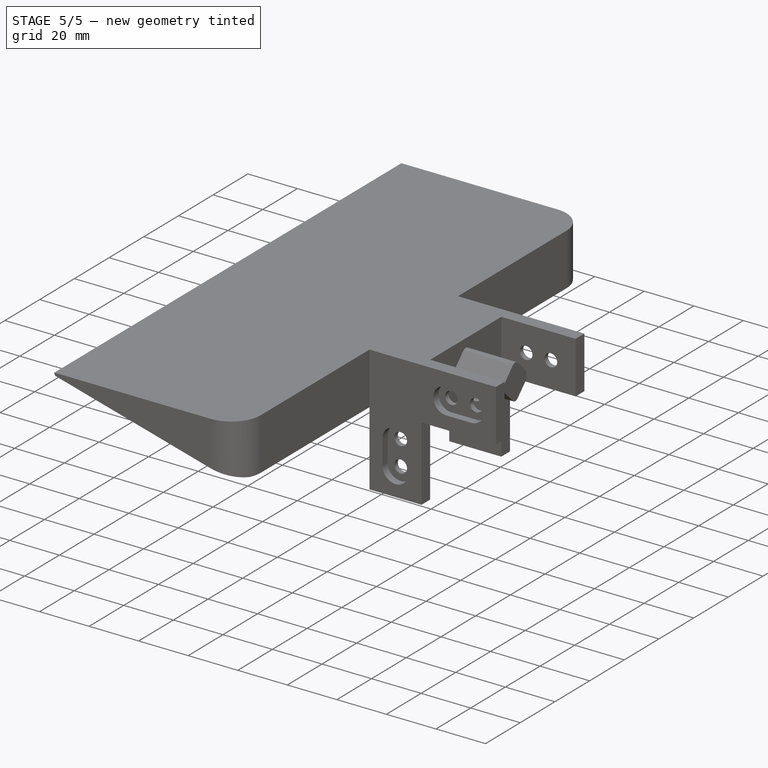
[diagram: stage 5 of 5 — iso view after this stage's code; geometry added in this stage tinted green]
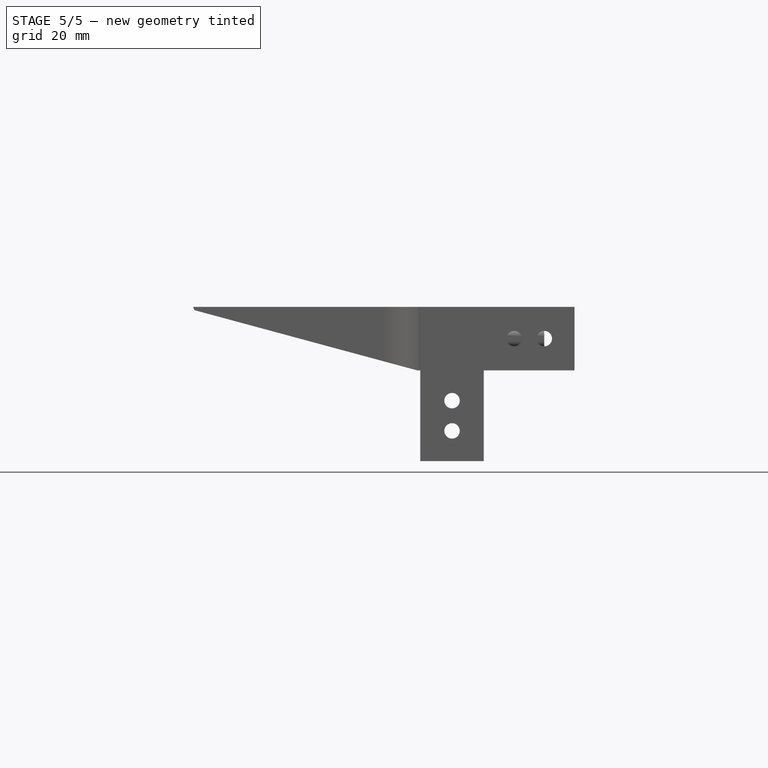
[diagram: stage 5 of 5 — front view after this stage's code; geometry added in this stage tinted green]
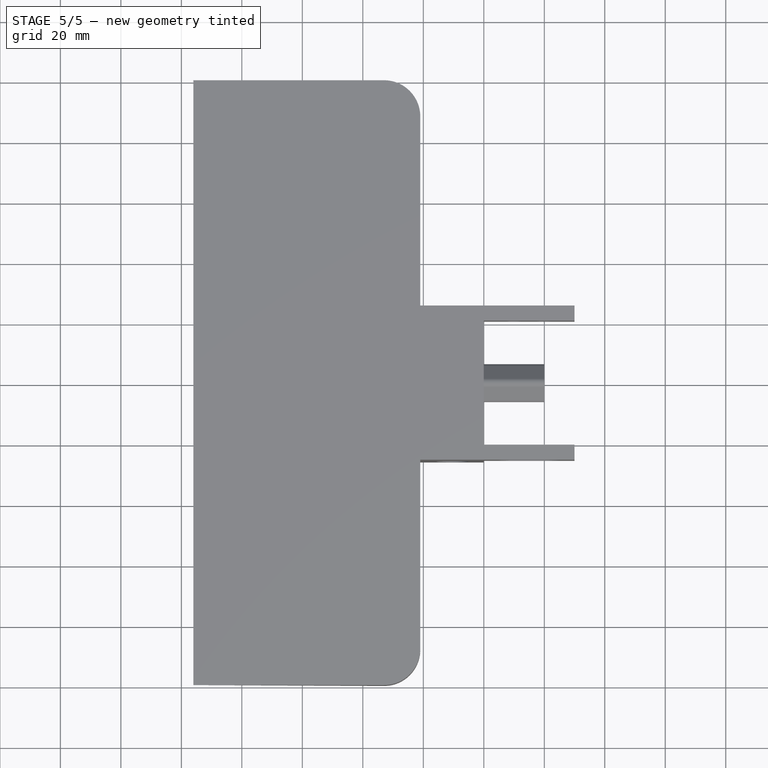
[diagram: stage 5 of 5 — top view after this stage's code; geometry added in this stage tinted green]
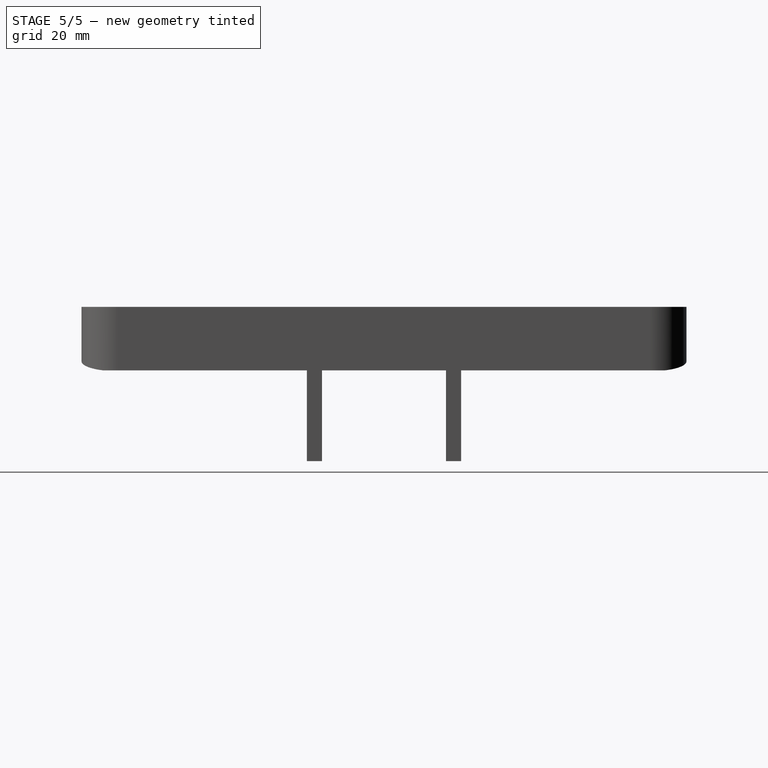
[diagram: stage 5 of 5 — right view after this stage's code; geometry added in this stage tinted green]
FEATURE [PartDesign::Pad] Pad019
  BaseFeature = -> Pad018
  Direction = (0,-1,0)
  Length = 2
  Length2 = 10
  Placement = pos=(0,0,0) rot=(1,1,1;2.0944rad)
  Profile = -> Sketch007 [Edge16,Edge17,Edge18,Edge15,Edge19,Edge20,Edge9,Edge10,Edge11,Edge12,Edge14,Vertex13,Edge13]
  ReferenceAxis = -> Sketch007 [N_Axis]
  Refine = true
  Suppressed = false
  Type = 0
FEATURE [PartDesign::Plane] DatumPlane005
  AttachmentSupport = -> [Pad019]
  Length = 77.5148
  MapMode = 5
  Placement = pos=(4.5e-15,20.5,0) rot=(0.57735,0.57735,0.57735;4.18879rad)
  ResizeMode = 0
  Width = 67.0148
FEATURE [Sketcher::SketchObject] Sketch008
  ArcFitTolerance = 1e-06
  AttachmentSupport = -> [Pad019]
  FullyConstrained = false
  MakeInternals = false
  MapMode = 5
  Placement = pos=(4.5e-15,20.5,0) rot=(0.57735,0.57735,0.57735;4.18879rad)
  sketch-geometry (28):
    g0: LineSegment StartX=10.5 StartY=-21 StartZ=0 EndX=-10.5 EndY=-21 EndZ=0
    g1: LineSegment [constr] StartX=-10.5 StartY=0 StartZ=0 EndX=10.5 EndY=0 EndZ=0
    g2: LineSegment StartX=-10.5 StartY=0 StartZ=0 EndX=-10.5 EndY=30 EndZ=0
    g3: LineSegment StartX=10.5 StartY=0 StartZ=0 EndX=10.5 EndY=30 EndZ=0
    g4: LineSegment StartX=-10.5 StartY=30 StartZ=0 EndX=10.5 EndY=30 EndZ=0
    g5: LineSegment [constr] StartX=-10.5 StartY=20 StartZ=0 EndX=10.5 EndY=20 EndZ=0
    g6: LineSegment [constr] StartX=-10.5 StartY=10 StartZ=0 EndX=10.5 EndY=10 EndZ=0
    g7: LineSegment [constr] StartX=0 StartY=-21 StartZ=0 EndX=0 EndY=30 EndZ=0
    g8: ArcOfCircle CenterX=0 CenterY=9.9998 CenterZ=0 NormalX=0 NormalY=0 NormalZ=1 AngleXU=0 Radius=5.25 StartAngle=3.14156 EndAngle=6.28322
    g9: ArcOfCircle CenterX=0 CenterY=19.9998 CenterZ=0 NormalX=0 NormalY=0 NormalZ=1 AngleXU=0 Radius=5.25 StartAngle=3.73333e-05 EndAngle=3.14156
    g10: LineSegment StartX=-5.25 StartY=10 StartZ=0 EndX=-5.25 EndY=20 EndZ=0
    g11: LineSegment StartX=5.25 StartY=10 StartZ=0 EndX=5.25 EndY=20 EndZ=0
    g12: Circle CenterX=0 CenterY=9.9998 CenterZ=0 NormalX=0 NormalY=0 NormalZ=1 AngleXU=0 Radius=2.55
    g13: Circle CenterX=0 CenterY=19.9998 CenterZ=0 NormalX=0 NormalY=0 NormalZ=1 AngleXU=0 Radius=2.55
    g14: LineSegment StartX=-10.5 StartY=-21 StartZ=0 EndX=-40.5088 EndY=-21.0088 EndZ=0
    g15: LineSegment StartX=-10.5 StartY=0 StartZ=0 EndX=-40.5088 EndY=-0.008817 EndZ=0
    g16: LineSegment StartX=-40.5088 StartY=-21.0088 StartZ=0 EndX=-40.5088 EndY=-0.008817 EndZ=0
    g17: LineSegment [constr] StartX=-30.5088 StartY=-21.0059 StartZ=0 EndX=-30.5088 EndY=-0.008817 EndZ=0
    g18: LineSegment [constr] StartX=-20.5 StartY=-21.0029 StartZ=0 EndX=-20.5088 EndY=-0.008817 EndZ=0
    g19: LineSegment [constr] StartX=10.4912 StartY=-10.4977 StartZ=0 EndX=-40.5088 EndY=-10.5088 EndZ=0
    g20: ArcOfCircle CenterX=-20.5086 CenterY=-10.5045 CenterZ=0 NormalX=0 NormalY=0 NormalZ=1 AngleXU=0 Radius=5.25 StartAngle=4.71361 EndAngle=7.8536
    g21: ArcOfCircle CenterX=-30.5086 CenterY=-10.5066 CenterZ=0 NormalX=0 NormalY=0 NormalZ=1 AngleXU=0 Radius=5.25 StartAngle=1.57083 EndAngle=4.71235
    g22: LineSegment StartX=-20.5022 StartY=-15.7545 StartZ=0 EndX=-30.5088 EndY=-15.7566 EndZ=0
    g23: LineSegment StartX=-20.5066 StartY=-5.25446 StartZ=0 EndX=-30.5088 EndY=-5.25664 EndZ=0
    g24: Circle CenterX=-20.5086 CenterY=-10.5045 CenterZ=0 NormalX=0 NormalY=0 NormalZ=1 AngleXU=0 Radius=2.55
    g25: Circle CenterX=-30.5086 CenterY=-10.5066 CenterZ=0 NormalX=0 NormalY=0 NormalZ=1 AngleXU=0 Radius=2.55
    g26: LineSegment StartX=10.5 StartY=-21 StartZ=0 EndX=10.5 EndY=0 EndZ=0
    g27: LineSegment [constr] StartX=-10.5 StartY=-10.5 StartZ=0 EndX=0 EndY=-10.5 EndZ=0
  constraints (52):
    c: Coincident(g4,g2)
    c: Coincident(g4,g3)
    c: PointOnObject(g5,g2)
    c: Distance(g4,g5) = 10
    c: PointOnObject(g6,g2)
    c: Distance(g1,g6) = 10
    c: Symmetric(g0,g0,g7)
    c: Symmetric(g4,g4,g7)
    c: PointOnObject(g8,g7)
    c: PointOnObject(g8,g6)
    c: PointOnObject(g8,g6)
    c: Radius(g9) = 5.25
    c: PointOnObject(g9,g7)
    c: PointOnObject(g9,g5)
    c: PointOnObject(g9,g5)
    c: Coincident(g10,g8)
    c: Coincident(g10,g9)
    c: Coincident(g11,g8)
    c: Coincident(g11,g9)
    c: Diameter(g12) = 5.1
    c: Coincident(g12,g8)
    c: Diameter(g13) = 5.1
    c: Coincident(g13,g9)
    c: Coincident(g16,g14)
    c: Coincident(g16,g15)
    c: PointOnObject(g17,g14)
    c: Distance(g16,g17) = 10
    c: PointOnObject(g18,g14)
    c: Distance(g14,g18) = 10
    c: Symmetric(g16,g16,g19)
    c: Radius(g20) = 5.25
    c: PointOnObject(g20,g19)
    c: PointOnObject(g20,g18)
    c: PointOnObject(g20,g18)
    c: Radius(g21) = 5.25
    c: PointOnObject(g21,g19)
    c: PointOnObject(g21,g17)
    c: PointOnObject(g21,g17)
    c: Coincident(g22,g20)
    c: Coincident(g22,g21)
    c: Coincident(g23,g20)
    c: Coincident(g23,g21)
    c: Diameter(g24) = 5.1
    c: Coincident(g24,g20)
    c: Diameter(g25) = 5.1
    c: Coincident(g25,g21)
    c: Coincident(g1,g2)
    c: Coincident(g1,g15)
    c: Coincident(g0,g14)
    c: Coincident(g26,g0)
    c: Coincident(g26,g3)
    c: PointOnObject(g27,g19)
FEATURE [PartDesign::Pad] Pad020
  BaseFeature = -> Pad019
  Direction = (-1e-16,1,-1e-15)
  Length = 5
  Length2 = 10
  Placement = pos=(0,0,0) rot=(1,1,1;2.0944rad)
  Profile = -> Sketch008 [Edge3,Edge2,Edge1,Edge8,Edge7,Edge6,Edge5,Edge4,Edge16,Edge17,Edge18,Edge15,Edge9,Edge12,Edge11,Edge10]
  ReferenceAxis = -> Sketch008 [N_Axis]
  Refine = true
  Suppressed = false
  Type = 0
FEATURE [PartDesign::Pad] Pad021
  BaseFeature = -> Pad020
  Direction = (-1e-16,1,-1e-15)
  Length = 2
  Length2 = 10
  Placement = pos=(0,0,0) rot=(1,1,1;2.0944rad)
  Profile = -> Sketch008 [Edge18,Edge17,Edge16,Edge15,Edge19,Edge20,Edge9,Edge12,Edge11,Edge14,Edge13,Edge10]
  ReferenceAxis = -> Sketch008 [N_Axis]
  Refine = true
  Suppressed = false
  Type = 0
FEATURE [PartDesign::Fillet] Fillet004
  Base = -> Pad021 [Edge21,Edge2,Edge22,Edge8,Edge5,Edge1]
  BaseFeature = -> Pad021
  Placement = pos=(0,0,0) rot=(1,1,1;2.0944rad)
  Radius = 2
  Refine = true
  SupportTransform = false
  Suppressed = false
  UseAllEdges = false
FEATURE [PartDesign::Fillet] Fillet005
  Base = -> Fillet004 [Edge51]
  BaseFeature = -> Fillet004
  Placement = pos=(0,0,0) rot=(1,1,1;2.0944rad)
  Radius = 6
  Refine = true
  SupportTransform = false
  Suppressed = false
  UseAllEdges = false
FEATURE [Sketcher::SketchObject] Sketch009
  ArcFitTolerance = 1e-06
  AttachmentSupport = -> [DatumPlane005]
  FullyConstrained = false
  MakeInternals = false
  MapMode = 5
  Placement = pos=(4.5e-15,20.5,0) rot=(0.57735,0.57735,0.57735;4.18879rad)
  sketch-geometry (4):
    g0: LineSegment StartX=10.5 StartY=0 StartZ=0 EndX=10.5 EndY=30 EndZ=0
    g1: LineSegment StartX=10.5 StartY=30 StartZ=0 EndX=-10.5 EndY=30 EndZ=0
    g2: LineSegment StartX=-10.5 StartY=30 StartZ=0 EndX=-10.5 EndY=0 EndZ=0
    g3: LineSegment StartX=-10.5 StartY=0 StartZ=0 EndX=10.5 EndY=0 EndZ=0
  constraints (11):
    c: PointOnObject(g0,g-1)
    c: Coincident(g0,g1)
    c: Coincident(g1,g2)
    c: Coincident(g2,g3)
    c: Coincident(g3,g0)
    c: Vertical(g0)
    c: Vertical(g2)
    c: Horizontal(g1)
    c: Horizontal(g3)
    c: Distance(g0,g2) = 21
    c: Distance(g1,g3) = 30
FEATURE [PartDesign::Pocket] Pocket
  BaseFeature = -> Fillet005
  Direction = (0,-1,0)
  Length = 5
  Length2 = 5
  Placement = pos=(0,0,0) rot=(1,1,1;2.0944rad)
  Profile = -> Sketch009 [Edge1,Edge4,Edge3,Edge2]
  ReferenceAxis = -> Sketch009 [N_Axis]
  Refine = true
  Reversed = true
  Suppressed = false
  Type = 0
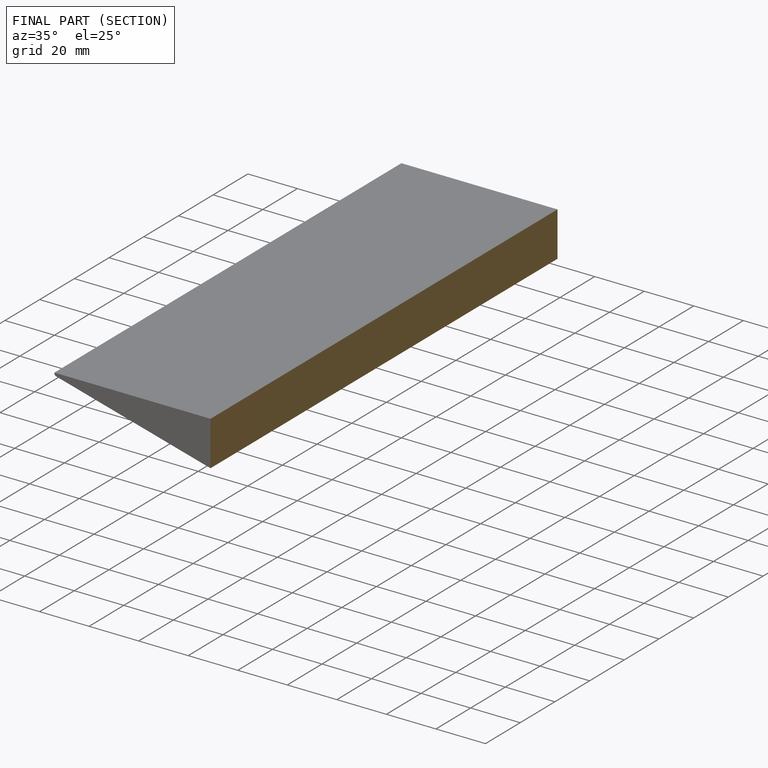
[diagram: finished part — half-section view (interior)]
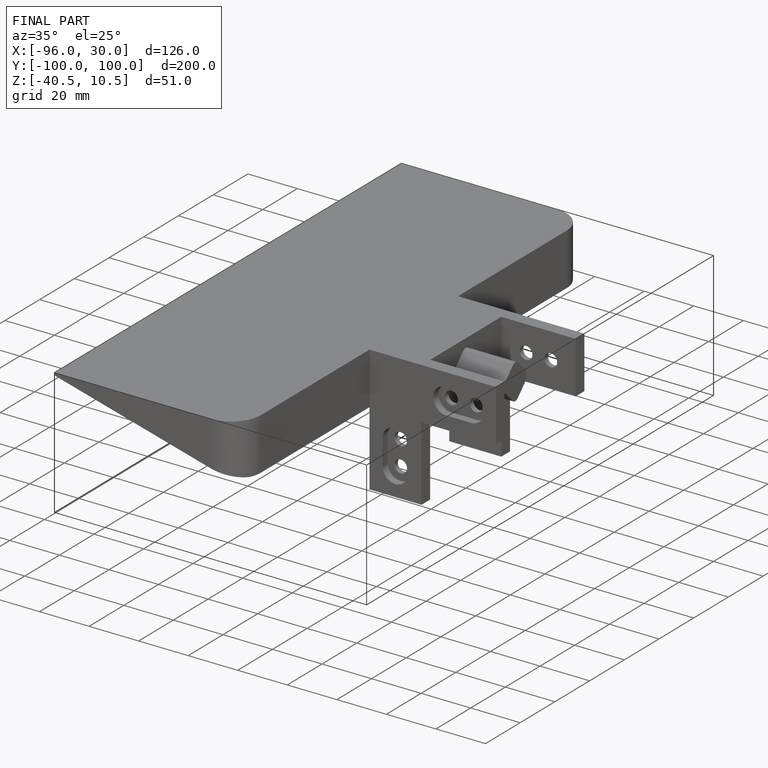
[diagram: finished part — iso view with bounding-box wireframe]
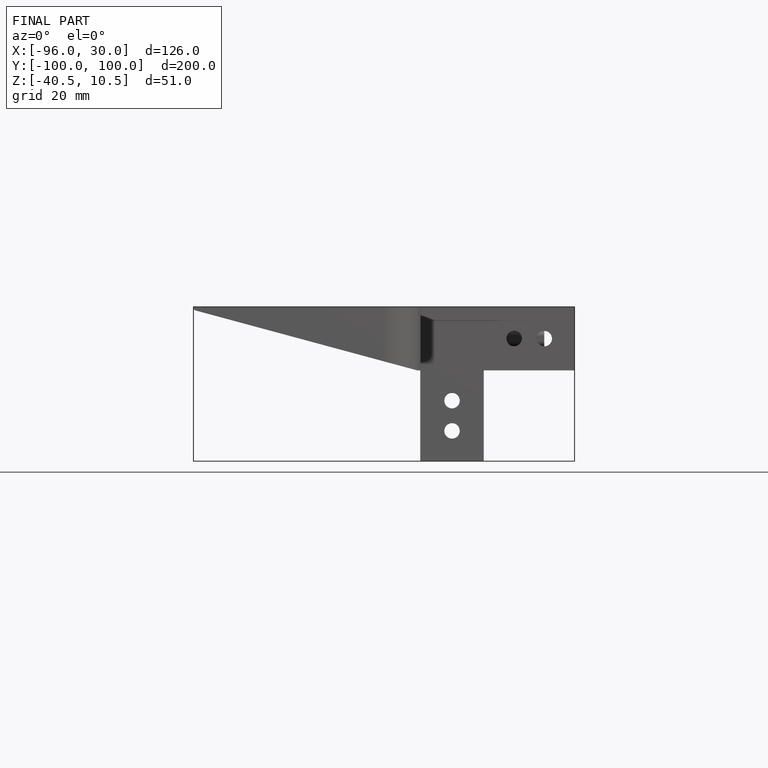
[diagram: finished part — front view with bounding-box wireframe]
